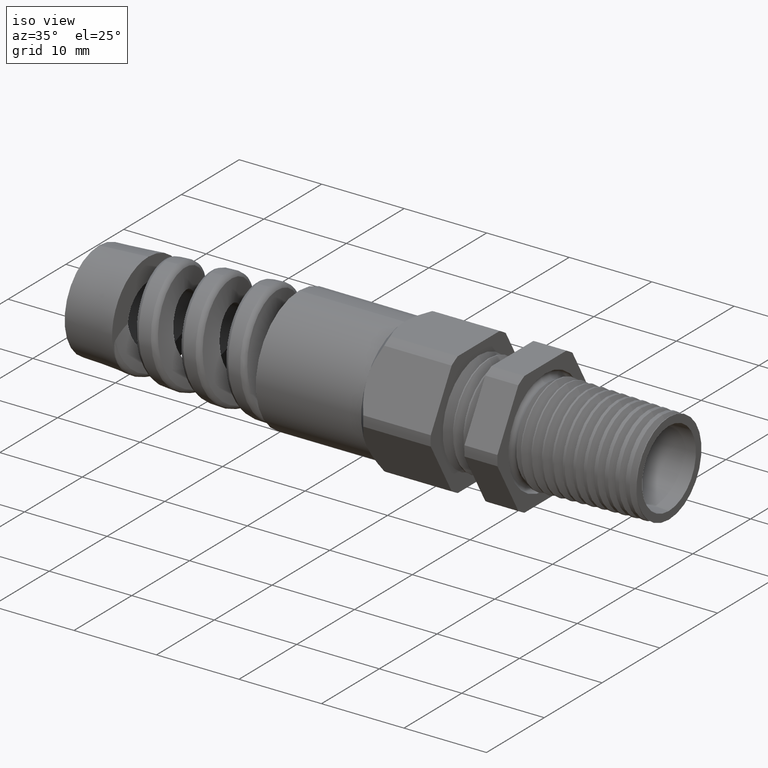
[diagram: clean part render]
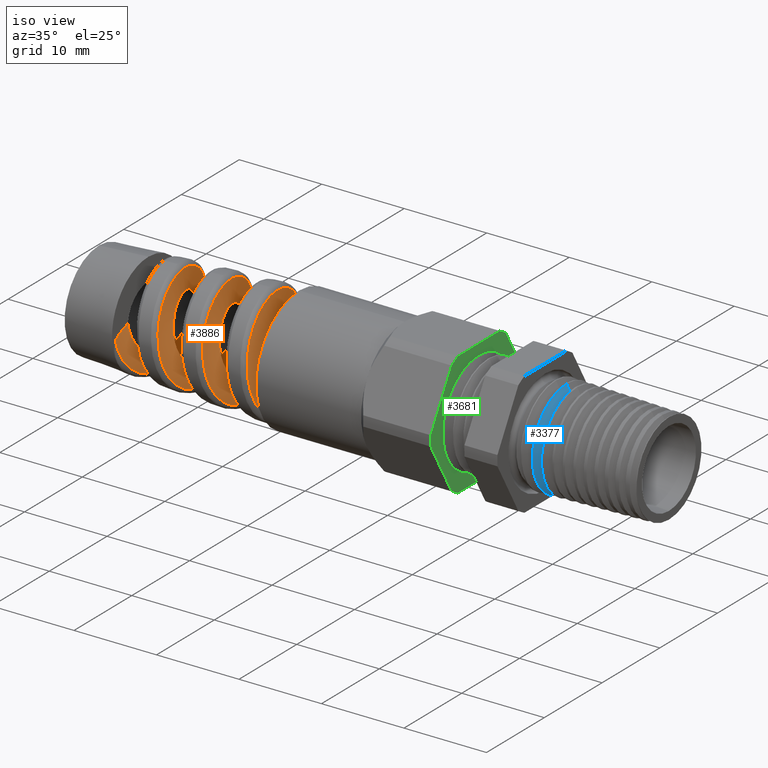
[diagram: same view with three faces highlighted in distinct colors, each labeled with its STEP entity id]
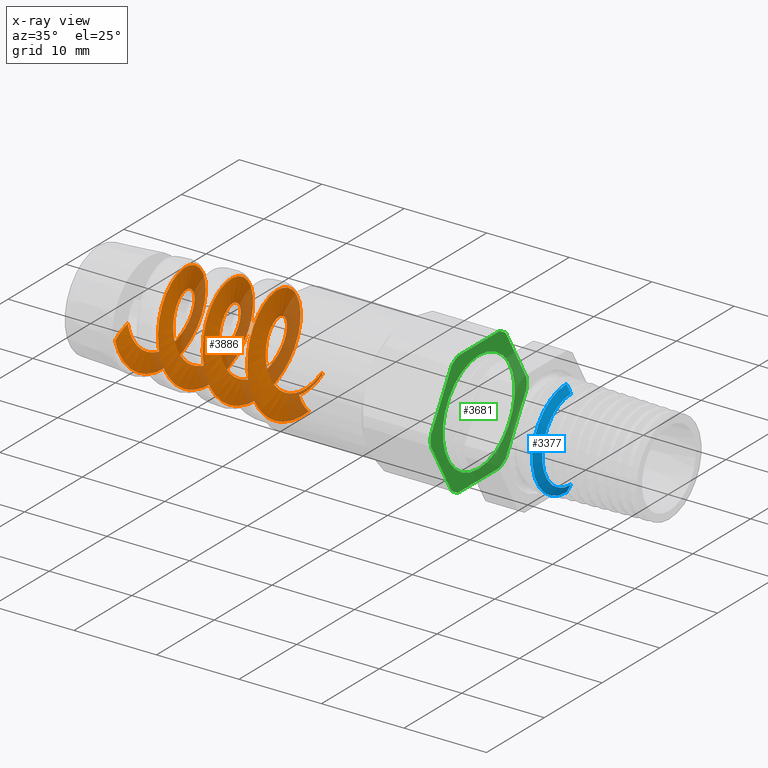
[diagram: x-ray of the same camera — body ghosted, the three highlighted faces saturated]
A machine part, iso view with three faces highlighted in distinct colors.
The next image is the same camera in x-ray (body ghosted, the three faces saturated) — at least one of them is partly hidden behind the body in this view.
Their STEP definitions:

[orange] entity #3886 — the highlighted face is a freeform B-spline surface patch.
#96 = CARTESIAN_POINT ( 'NONE',  ( -1.877112860892198800, 0.3078725685327817200, 0.06067525967530775600 ) ) ;
#97 = CARTESIAN_POINT ( 'NONE',  ( -1.885446194225673700, 0.3131205871481073100, -0.01633085429921052700 ) ) ;
#98 = CARTESIAN_POINT ( 'NONE',  ( -1.902112860892436500, 0.2718241730993913900, -0.1554244242149217800 ) ) ;
#99 = CARTESIAN_POINT ( 'NONE',  ( -1.910446194226206100, 0.2254613135370124600, -0.2169259237356238600 ) ) ;
#100 = CARTESIAN_POINT ( 'NONE',  ( -1.927112860891903900, 0.1034267933918962300, -0.2948339599561291000 ) ) ;
#101 = CARTESIAN_POINT ( 'NONE',  ( -1.935446194225839600, 0.02827496824967258900, -0.3109172776356258200 ) ) ;
#102 = CARTESIAN_POINT ( 'NONE',  ( -1.952112860892270200, -0.1146630422064503200, -0.2899249743931121000 ) ) ;
#103 = CARTESIAN_POINT ( 'NONE',  ( -1.960446194225737400, -0.1818460025782895600, -0.2529453131776389100 ) ) ;
#104 = CARTESIAN_POINT ( 'NONE',  ( -1.977112860892372300, -0.2759202457387066000, -0.1437113989407879900 ) ) ;
#105 = CARTESIAN_POINT ( 'NONE',  ( -1.985446194225756000, -0.3024193444428729400, -0.07192370018606444900 ) ) ;
#106 = CARTESIAN_POINT ( 'NONE',  ( -2.002112860892353700, -0.3019829124201798800, 0.07192370018605497000 ) ) ;
#107 = CARTESIAN_POINT ( 'NONE',  ( -2.010446194225864200, -0.2750565168075926900, 0.1433752949841388400 ) ) ;
#108 = CARTESIAN_POINT ( 'NONE',  ( -2.027112860892246200, -0.1807307316014177300, 0.2515666039524897000 ) ) ;
#109 = CARTESIAN_POINT ( 'NONE',  ( -2.035446194225462200, -0.1137356084785749600, 0.2878537194510642500 ) ) ;
#110 = CARTESIAN_POINT ( 'NONE',  ( -2.052112860892648000, 0.02809286356040927000, 0.3078046552487520000 ) ) ;
#111 = CARTESIAN_POINT ( 'NONE',  ( -2.060446194225536300, 0.1023256030788175900, 0.2913913500071362300 ) ) ;
#112 = CARTESIAN_POINT ( 'NONE',  ( -2.077112860892572900, 0.2223153504371732600, 0.2137598339754739600 ) ) ;
#113 = CARTESIAN_POINT ( 'NONE',  ( -2.085446194225842200, 0.2675690496955958600, 0.1528759389014506500 ) ) ;
#114 = CARTESIAN_POINT ( 'NONE',  ( -2.102112860892268100, 0.3073256274505953800, 0.01592836895792579600 ) ) ;
#115 = CARTESIAN_POINT ( 'NONE',  ( -2.110446194225779100, 0.3016674320699259700, -0.05955431389107197100 ) ) ;
#116 = CARTESIAN_POINT ( 'NONE',  ( -2.127112860892332000, 0.2421613108153938800, -0.1888039512647776100 ) ) ;
#117 = CARTESIAN_POINT ( 'NONE',  ( -2.135446194225519600, 0.1885715750516269700, -0.2420275386418699600 ) ) ;
#149 = CARTESIAN_POINT ( 'NONE',  ( -2.203779527559054600, -0.2277829174569560300, -0.02701814665759899900 ) ) ;
#152 = CARTESIAN_POINT ( 'NONE',  ( -1.710446194225917700, 0.07363756474786233000, -0.3096204728745001700 ) ) ;
#153 = CARTESIAN_POINT ( 'NONE',  ( -1.727112860892191700, -0.07363756474784258200, -0.3091840408516055000 ) ) ;
#154 = CARTESIAN_POINT ( 'NONE',  ( -1.735446194225915400, -0.1467957788194899900, -0.2816211091607233000 ) ) ;
#155 = CARTESIAN_POINT ( 'NONE',  ( -1.752112860892194800, -0.2575775926169353600, -0.1850506387422891400 ) ) ;
#156 = CARTESIAN_POINT ( 'NONE',  ( -1.760446194225692800, -0.2947376424202973200, -0.1164568557998286600 ) ) ;
#157 = CARTESIAN_POINT ( 'NONE',  ( -1.777112860892416700, -0.3151763949340444200, 0.02876445602541934400 ) ) ;
#158 = CARTESIAN_POINT ( 'NONE',  ( -1.785446194225393400, -0.2983759098785797000, 0.1047770324228567800 ) ) ;
#159 = CARTESIAN_POINT ( 'NONE',  ( -1.802112860892716200, -0.2188912235708207200, 0.2276503690167728000 ) ) ;
#160 = CARTESIAN_POINT ( 'NONE',  ( -1.810446194225844100, -0.1565491722323917000, 0.2739956303825092900 ) ) ;
#161 = CARTESIAN_POINT ( 'NONE',  ( -1.827112860892266200, -0.01631272027730937300, 0.3147179110279694200 ) ) ;
#162 = CARTESIAN_POINT ( 'NONE',  ( -1.835446194225549100, 0.06098678470978882000, 0.3089297739638116600 ) ) ;
#163 = CARTESIAN_POINT ( 'NONE',  ( -1.852112860892561000, 0.1933543941680695400, 0.2479997225694611500 ) ) ;
#164 = CARTESIAN_POINT ( 'NONE',  ( -1.860446194225910700, 0.2478659503961175600, 0.1931220179551262600 ) ) ;
#179 = CARTESIAN_POINT ( 'NONE',  ( -2.191562501492804800, -0.1380802437323614400, -0.03507562850228176200 ) ) ;
#180 = CARTESIAN_POINT ( 'NONE',  ( -2.194030115570699400, -0.1402073929731216500, -0.02524847961001126100 ) ) ;
#181 = CARTESIAN_POINT ( 'NONE',  ( -2.198891390103962600, -0.1423502288729346600, -0.005657835872453868600 ) ) ;
#182 = CARTESIAN_POINT ( 'NONE',  ( -2.201313340382343900, -0.1424097170766695500, 0.004214716230947322300 ) ) ;
#183 = CARTESIAN_POINT ( 'NONE',  ( -2.203779527559055000, -0.1414148259496368900, 0.01415448697344930500 ) ) ;
#184 = CARTESIAN_POINT ( 'NONE',  ( -1.468779527559054900, 0.2387781236985069000, -0.2069024219681114000 ) ) ;
#185 = CARTESIAN_POINT ( 'NONE',  ( -1.477129114036432900, 0.1892741821010096900, -0.2636991410921907800 ) ) ;
#186 = CARTESIAN_POINT ( 'NONE',  ( -1.485446194225549700, 0.1191781031206922000, -0.3016215653894396300 ) ) ;
#187 = CARTESIAN_POINT ( 'NONE',  ( -1.502112860892559800, -0.02943604849003148400, -0.3225481346194263900 ) ) ;
#188 = CARTESIAN_POINT ( 'NONE',  ( -1.510446194226031200, -0.1072284617663105500, -0.3053604697503148300 ) ) ;
#189 = CARTESIAN_POINT ( 'NONE',  ( -1.527112860892078300, -0.2329853875969576400, -0.2240226131658758800 ) ) ;
#190 = CARTESIAN_POINT ( 'NONE',  ( -1.535446194225908300, -0.2804222110696656900, -0.1602224055619982900 ) ) ;
#191 = CARTESIAN_POINT ( 'NONE',  ( -1.552112860892201500, -0.3221101946050999300, -0.01669707159802963000 ) ) ;
#192 = CARTESIAN_POINT ( 'NONE',  ( -1.560446194225717300, -0.3161921158573208800, 0.06241925552935800900 ) ) ;
#193 = CARTESIAN_POINT ( 'NONE',  ( -1.577112860892393200, -0.2538381343239009500, 0.1979048370705178100 ) ) ;
#194 = CARTESIAN_POINT ( 'NONE',  ( -1.585446194225535100, -0.1976724608589812100, 0.2537043621501964300 ) ) ;
#195 = CARTESIAN_POINT ( 'NONE',  ( -1.602112860892574300, -0.06210773049348305300, 0.3151349104266461000 ) ) ;
#196 = CARTESIAN_POINT ( 'NONE',  ( -1.610446194225737100, 0.01671520561887105900, 0.3205128707256724200 ) ) ;
#197 = CARTESIAN_POINT ( 'NONE',  ( -1.627112860892372600, 0.1590976575455656500, 0.2782507537861197400 ) ) ;
#198 = CARTESIAN_POINT ( 'NONE',  ( -1.635446194225751900, 0.2220573133310135000, 0.2307963321169323500 ) ) ;
#199 = CARTESIAN_POINT ( 'NONE',  ( -1.652112860892358300, 0.3018185198275184500, 0.1058782227356328300 ) ) ;
#200 = CARTESIAN_POINT ( 'NONE',  ( -1.660446194225443400, 0.3182890173209653200, 0.02894656071401570000 ) ) ;
#201 = CARTESIAN_POINT ( 'NONE',  ( -1.677112860892666000, 0.2968088973623018700, -0.1173842895270100900 ) ) ;
#202 = CARTESIAN_POINT ( 'NONE',  ( -1.685446194225672000, 0.2589563018411505400, -0.1861659097200718800 ) ) ;
#203 = CARTESIAN_POINT ( 'NONE',  ( -1.702112860892438100, 0.1471318827770902700, -0.2824848380909111800 ) ) ;
#219 = CARTESIAN_POINT ( 'NONE',  ( -2.145159393042757000, -3.250717700679643900E-013, -0.1421214357512619900 ) ) ;
#220 = CARTESIAN_POINT ( 'NONE',  ( -2.147601861365689300, -0.009900830810590888900, -0.1421214357512392300 ) ) ;
#221 = CARTESIAN_POINT ( 'NONE',  ( -2.150018120909497300, -0.01969877907673356000, -0.1410971020930565600 ) ) ;
#222 = CARTESIAN_POINT ( 'NONE',  ( -2.154903323822041600, -0.03906330386540427000, -0.1370054466336702900 ) ) ;
#223 = CARTESIAN_POINT ( 'NONE',  ( -2.157374959245164500, -0.04862943942304991100, -0.1339057893275970300 ) ) ;
#224 = CARTESIAN_POINT ( 'NONE',  ( -2.162247766013815700, -0.06664213333864664500, -0.1259142917151223100 ) ) ;
#225 = CARTESIAN_POINT ( 'NONE',  ( -2.164673882110147700, -0.07520578529420050800, -0.1210055114218552600 ) ) ;
#226 = CARTESIAN_POINT ( 'NONE',  ( -2.169604203911526000, -0.09138956567276260200, -0.1092986332134393600 ) ) ;
#227 = CARTESIAN_POINT ( 'NONE',  ( -2.172026864086219300, -0.09873766868825194200, -0.1026959642033962200 ) ) ;
#228 = CARTESIAN_POINT ( 'NONE',  ( -2.176888507261004200, -0.1119646355388851400, -0.08808807337148917600 ) ) ;
#229 = CARTESIAN_POINT ( 'NONE',  ( -2.179355714293586200, -0.1179004093688648400, -0.07997481260833180800 ) ) ;
#230 = CARTESIAN_POINT ( 'NONE',  ( -2.184248576838365700, -0.1278482644510914600, -0.06285935457771962800 ) ) ;
#231 = CARTESIAN_POINT ( 'NONE',  ( -2.186672295474280300, -0.1318858907144919700, -0.05387546059630027300 ) ) ;
#241 = CARTESIAN_POINT ( 'NONE',  ( -1.484637038485884900, -0.006803692892923731600, -0.01923237462847847100 ) ) ;
#242 = CARTESIAN_POINT ( 'NONE',  ( -1.501303705151932000, -0.01443207417156423800, -0.01381112391729970300 ) ) ;
#243 = CARTESIAN_POINT ( 'NONE',  ( -1.509637038485762000, -0.01715218036453363500, -0.009745457315661553200 ) ) ;
#244 = CARTESIAN_POINT ( 'NONE',  ( -1.526303705152055200, -0.01927937087768488000, -0.0009518113078972378700 ) ) ;
#245 = CARTESIAN_POINT ( 'NONE',  ( -1.534637038485571000, -0.01868445744108876800, 0.003736939583521700000 ) ) ;
#246 = CARTESIAN_POINT ( 'NONE',  ( -1.551303705152246900, -0.01466291548095782800, 0.01149229534525897400 ) ) ;
#247 = CARTESIAN_POINT ( 'NONE',  ( -1.559637038485388800, -0.01125991913292661800, 0.01452914330758051600 ) ) ;
#248 = CARTESIAN_POINT ( 'NONE',  ( -1.576303705152428000, -0.003425414548400141600, 0.01762725201010611000 ) ) ;
#249 = CARTESIAN_POINT ( 'NONE',  ( -1.584637038485591000, 0.0009699453283545914000, 0.01768204699836555300 ) ) ;
#250 = CARTESIAN_POINT ( 'NONE',  ( -1.601303705152226300, 0.008620709299660842000, 0.01498072308086553300 ) ) ;
#251 = CARTESIAN_POINT ( 'NONE',  ( -1.609637038485605600, 0.01184582408048378600, 0.01224301869458858200 ) ) ;
#252 = CARTESIAN_POINT ( 'NONE',  ( -1.626303705152212000, 0.01569042470766306200, 0.005453453859153693100 ) ) ;
#253 = CARTESIAN_POINT ( 'NONE',  ( -1.634637038485297100, 0.01629979056163205800, 0.001434237256013096500 ) ) ;
#254 = CARTESIAN_POINT ( 'NONE',  ( -1.651303705152519700, 0.01480347341187953200, -0.005906211487798319700 ) ) ;
#255 = CARTESIAN_POINT ( 'NONE',  ( -1.659637038485525700, 0.01271133192675264100, -0.009197449783060668300 ) ) ;
#256 = CARTESIAN_POINT ( 'NONE',  ( -1.676303705152291800, 0.007009019663753598100, -0.01356104915892289100 ) ) ;
#257 = CARTESIAN_POINT ( 'NONE',  ( -1.684637038485771600, 0.003427729109092368800, -0.01462047287446266800 ) ) ;
#258 = CARTESIAN_POINT ( 'NONE',  ( -1.701303705152045400, -0.003427729109091449000, -0.01418404085164191300 ) ) ;
#259 = CARTESIAN_POINT ( 'NONE',  ( -1.709637038485769300, -0.006672915705391548700, -0.01269732022940215000 ) ) ;
#260 = CARTESIAN_POINT ( 'NONE',  ( -1.726303705152048500, -0.01133262270333000800, -0.008082178804583981700 ) ) ;
#261 = CARTESIAN_POINT ( 'NONE',  ( -1.734637038485546500, -0.01273221846952035100, -0.004978777763073097100 ) ) ;
#262 = CARTESIAN_POINT ( 'NONE',  ( -1.751303705152270400, -0.01318716817507210700, 0.001252132569916833300 ) ) ;
#263 = CARTESIAN_POINT ( 'NONE',  ( -1.759637038485247100, -0.01224781476101970800, 0.004352263542806448500 ) ) ;
#264 = CARTESIAN_POINT ( 'NONE',  ( -1.776303705152569900, -0.008679734317972635800, 0.009097055598036023200 ) ) ;
#265 = CARTESIAN_POINT ( 'NONE',  ( -1.784637038485697800, -0.006072223992333797500, 0.01072559967550542100 ) ) ;
#266 = CARTESIAN_POINT ( 'NONE',  ( -1.801303705152119900, -0.0005674599809090502500, 0.01188708730242308600 ) ) ;
#267 = CARTESIAN_POINT ( 'NONE',  ( -1.809637038485402800, 0.002304468757323216800, 0.01142211555061560000 ) ) ;
#268 = CARTESIAN_POINT ( 'NONE',  ( -1.826303705152414700, 0.006941852449436416100, 0.008824503723483621100 ) ) ;
#269 = CARTESIAN_POINT ( 'NONE',  ( -1.834637038485764400, 0.008690731549907919700, 0.006709476236954130600 ) ) ;
#270 = CARTESIAN_POINT ( 'NONE',  ( -1.851303705152052400, 0.01036491011983199000, 0.001992943722350139400 ) ) ;
#271 = CARTESIAN_POINT ( 'NONE',  ( -1.859637038485527400, 0.01028976342300628000, -0.0005855940013214381200 ) ) ;
#272 = CARTESIAN_POINT ( 'NONE',  ( -1.876303705152290200, 0.008554142391934129900, -0.004947475976379942800 ) ) ;
#273 = CARTESIAN_POINT ( 'NONE',  ( -1.884637038486059800, 0.006908000121139546400, -0.006714434480941700600 ) ) ;
#274 = CARTESIAN_POINT ( 'NONE',  ( -1.901303705151757600, 0.003002024508955549900, -0.008705864840420270500 ) ) ;
#275 = CARTESIAN_POINT ( 'NONE',  ( -1.909637038485693300, 0.0007626447992916610000, -0.008928050877358650900 ) ) ;
#276 = CARTESIAN_POINT ( 'NONE',  ( -1.926303705152123900, -0.003184964174842425900, -0.007919550441626186200 ) ) ;
#277 = CARTESIAN_POINT ( 'NONE',  ( -1.934637038485591100, -0.004877542636247676400, -0.006700343269030822000 ) ) ;
#278 = CARTESIAN_POINT ( 'NONE',  ( -1.951303705152226000, -0.006996456811743522900, -0.003588535821667604500 ) ) ;
#279 = CARTESIAN_POINT ( 'NONE',  ( -1.959637038485609700, -0.007419344442860373000, -0.001713864554373319000 ) ) ;
#280 = CARTESIAN_POINT ( 'NONE',  ( -1.976303705152207400, -0.006982912420191427600, 0.001713864554373093500 ) ) ;
#281 = CARTESIAN_POINT ( 'NONE',  ( -1.984637038485718200, -0.006132727882176294000, 0.003252431863227043700 ) ) ;
#282 = CARTESIAN_POINT ( 'NONE',  ( -2.001303705152099900, -0.003762271657816407900, 0.005321634045687766500 ) ) ;
#283 = CARTESIAN_POINT ( 'NONE',  ( -2.009637038485315900, -0.002257530450207830900, 0.005848295499102942000 ) ) ;
#284 = CARTESIAN_POINT ( 'NONE',  ( -2.026303705152501700, 0.0005805401132877570500, 0.005815428490963013400 ) ) ;
#285 = CARTESIAN_POINT ( 'NONE',  ( -2.034637038485390500, 0.001900834192321931100, 0.005263254893715574000 ) ) ;
#286 = CARTESIAN_POINT ( 'NONE',  ( -2.051303705152426500, 0.003762037024874653700, 0.003548344718491068000 ) ) ;
#287 = CARTESIAN_POINT ( 'NONE',  ( -2.059637038485695900, 0.004299018986259413500, 0.002398990669249196100 ) ) ;
#288 = CARTESIAN_POINT ( 'NONE',  ( -2.076303705152121800, 0.004494803727378816400, 0.0001831086536782358600 ) ) ;
#289 = CARTESIAN_POINT ( 'NONE',  ( -2.084637038485632800, 0.004159773660320750600, -0.0008719979308312859700 ) ) ;
#290 = CARTESIAN_POINT ( 'NONE',  ( -2.101303705152185700, 0.002986091965831221600, -0.002391409553907287800 ) ) ;
#291 = CARTESIAN_POINT ( 'NONE',  ( -2.109637038485373300, 0.002159033341366527400, -0.002852319792054046300 ) ) ;
#293 = B_SPLINE_CURVE_WITH_KNOTS ( 'NONE', 3,
 ( #183, #182, #181, #180, #179, #231, #230, #229, #228, #227, #226, #225, #224, #223, #222, #221, #220, #219 ),
 .UNSPECIFIED., .F., .F.,
 ( 4, 2, 2, 2, 2, 2, 2, 2, 4 ),
 ( 2.318655878900633200E-015, 0.0007729172111650498800, 0.001545834422327781100, 0.002318751633490512200, 0.003091668844653242900, 0.003864586055815973100, 0.004637503266978703300, 0.005410420478141433600, 0.006183337689304165500 ),
 .UNSPECIFIED. ) ;
#315 = FACE_OUTER_BOUND ( 'NONE', #3887, .T. ) ;
#329 = CARTESIAN_POINT ( 'NONE',  ( -2.152112860892590800, 0.05924278885677188700, -0.3006102266390886000 ) ) ;
#330 = CARTESIAN_POINT ( 'NONE',  ( -2.160446194225433400, -0.01594650298015578100, -0.3057283035703586300 ) ) ;
#331 = CARTESIAN_POINT ( 'NONE',  ( -2.177112860892676900, -0.1517511908836698700, -0.2653975924128473800 ) ) ;
#332 = CARTESIAN_POINT ( 'NONE',  ( -2.185446194225847200, -0.2117945341406551300, -0.2201262949566992800 ) ) ;
#333 = CARTESIAN_POINT ( 'NONE',  ( -2.202112860892263300, -0.2878494000843185900, -0.1009753640485537600 ) ) ;
#334 = CARTESIAN_POINT ( 'NONE',  ( -2.210446194225621900, -0.3035455379500239800, -0.02760337578435316500 ) ) ;
#335 = CARTESIAN_POINT ( 'NONE',  ( -2.227112860892488400, -0.2830410514241858400, 0.1119417948849059500 ) ) ;
#336 = CARTESIAN_POINT ( 'NONE',  ( -2.235446194226001500, -0.2469343245134305600, 0.1775260954371022100 ) ) ;
#337 = CARTESIAN_POINT ( 'NONE',  ( -2.252112860892109000, -0.1402909151051786600, 0.2693556533859099400 ) ) ;
#338 = CARTESIAN_POINT ( 'NONE',  ( -2.260446194225505000, -0.07020983562286432800, 0.2952182160112474800 ) ) ;
#339 = CARTESIAN_POINT ( 'NONE',  ( -2.277946194225960200, 0.07723081918515126200, 0.2947599623876277500 ) ) ;
#340 = CARTESIAN_POINT ( 'NONE',  ( -2.287112860892347700, 0.1537799074146917200, 0.2627341645830989500 ) ) ;
#341 = CARTESIAN_POINT ( 'NONE',  ( -2.305446194225762900, 0.2623947001361476800, 0.1534404429677366000 ) ) ;
#342 = CARTESIAN_POINT ( 'NONE',  ( -2.314612860892492700, 0.2937998119260346000, 0.07685376898084146600 ) ) ;
#343 = CARTESIAN_POINT ( 'NONE',  ( -2.332946194225617100, 0.2933197367013548100, -0.07685376898084377000 ) ) ;
#344 = CARTESIAN_POINT ( 'NONE',  ( -2.342112860892423800, 0.2614491564777926000, -0.1530281288214259400 ) ) ;
#345 = CARTESIAN_POINT ( 'NONE',  ( -2.360446194225685800, 0.1526886643745910000, -0.2611096920309634600 ) ) ;
#346 = CARTESIAN_POINT ( 'NONE',  ( -2.369612860892810400, 0.07647671877706857500, -0.2923595862397477300 ) ) ;
#347 = CARTESIAN_POINT ( 'NONE',  ( -2.387946194225299300, -0.07647671877707291900, -0.2918795110150310700 ) ) ;
#348 = CARTESIAN_POINT ( 'NONE',  ( -2.397112860892150400, -0.1522763502281412300, -0.2601641483726373500 ) ) ;
#351 = CARTESIAN_POINT ( 'NONE',  ( -2.415446194225959500, -0.2598246839257985500, -0.1519368857812937200 ) ) ;
#352 = CARTESIAN_POINT ( 'NONE',  ( -2.424612860892358900, -0.2909193605533944000, -0.07609966857321848200 ) ) ;
#353 = CARTESIAN_POINT ( 'NONE',  ( -2.442946194225751100, -0.2904392853287737800, 0.07609966857322557300 ) ) ;
#354 = CARTESIAN_POINT ( 'NONE',  ( -2.452112860892601300, -0.2588791402671282200, 0.1515245716352003900 ) ) ;
#355 = CARTESIAN_POINT ( 'NONE',  ( -2.470446194225509400, -0.1511851071883504000, 0.2585396758202897500 ) ) ;
#356 = CARTESIAN_POINT ( 'NONE',  ( -2.479588047183890700, -0.07592759638444826500, 0.2894797846432755600 ) ) ;
#357 = CARTESIAN_POINT ( 'NONE',  ( -2.488779527559054700, 4.810179415061299700E-015, 0.2892390972547788100 ) ) ;
#358 = CARTESIAN_POINT ( 'NONE',  ( -1.442970371818908600, 0.01583199926398995800, -0.01371850545426394800 ) ) ;
#359 = CARTESIAN_POINT ( 'NONE',  ( -1.451309438653319800, 0.01239972607401174100, -0.01734610553144407000 ) ) ;
#360 = CARTESIAN_POINT ( 'NONE',  ( -1.459637038485403400, 0.007700025076291124600, -0.01961614143984673200 ) ) ;
#361 = CARTESIAN_POINT ( 'NONE',  ( -1.476303705152413500, -0.001923725026897830600, -0.02055890785927210600 ) ) ;
#368 = CARTESIAN_POINT ( 'NONE',  ( -2.126303705152444500, 0.0005604728959156204600, -0.003102568229739103600 ) ) ;
#369 = CARTESIAN_POINT ( 'NONE',  ( -2.134637038485287100, -0.0002012426739274018900, -0.002897479847716239800 ) ) ;
#370 = CARTESIAN_POINT ( 'NONE',  ( -2.151303705152530600, -0.001274242653459475200, -0.002127561702933739900 ) ) ;
#371 = CARTESIAN_POINT ( 'NONE',  ( -2.159637038485700900, -0.001583044881282623100, -0.001572981548056362000 ) ) ;
#372 = CARTESIAN_POINT ( 'NONE',  ( -2.176303705152117000, -0.001721304973294271500, -0.0005505951583920715600 ) ) ;
#373 = CARTESIAN_POINT ( 'NONE',  ( -2.184637038485475600, -0.001556311193066839300, -9.105234294697234300E-005 ) ) ;
#374 = CARTESIAN_POINT ( 'NONE',  ( -2.201303705152342100, -0.001035627471391486900, 0.0004637168622623952500 ) ) ;
#375 = CARTESIAN_POINT ( 'NONE',  ( -2.209637038485855200, -0.0006893546115892620800, 0.0005576354891925718800 ) ) ;
#376 = CARTESIAN_POINT ( 'NONE',  ( -2.226303705151962700, -0.0001680519793015710200, 0.0004318644648059295400 ) ) ;
#377 = CARTESIAN_POINT ( 'NONE',  ( -2.234637038485359100, 1.334163768545290300E-016, 0.0002182160112491316700 ) ) ;
#378 = CARTESIAN_POINT ( 'NONE',  ( -2.252137038485813900, -1.467580145399828900E-016, -0.0002400376123751921300 ) ) ;
#379 = CARTESIAN_POINT ( 'NONE',  ( -2.261303705152201400, -0.0002061570738461238800, -0.0004727718284636083500 ) ) ;
#380 = CARTESIAN_POINT ( 'NONE',  ( -2.279637038485616600, -0.0008122362753802200700, -0.0005456215207627261700 ) ) ;
#381 = CARTESIAN_POINT ( 'NONE',  ( -2.288803705152346400, -0.001200188073946070900, -0.0003770502019031567100 ) ) ;
#382 = CARTESIAN_POINT ( 'NONE',  ( -2.307137038485470800, -0.001680263298665622400, 0.0003770502019031681000 ) ) ;
#383 = CARTESIAN_POINT ( 'NONE',  ( -2.316303705152277500, -0.001757779932341547000, 0.0009579356685104085300 ) ) ;
#384 = CARTESIAN_POINT ( 'NONE',  ( -2.334637038485539500, -0.001297400115335747000, 0.002097244379166927700 ) ) ;
#385 = CARTESIAN_POINT ( 'NONE',  ( -2.343803705152664600, -0.0007541004037877321500, 0.002640413760248521100 ) ) ;
#386 = CARTESIAN_POINT ( 'NONE',  ( -2.362137038485153000, 0.0007541004037877747600, 0.003120488984973718300 ) ) ;
#387 = CARTESIAN_POINT ( 'NONE',  ( -2.371303705152004100, 0.001709714263159855000, 0.003042788036178665400 ) ) ;
#388 = CARTESIAN_POINT ( 'NONE',  ( -2.389637038485813200, 0.003382252482968568000, 0.002049178709949650300 ) ) ;
#389 = CARTESIAN_POINT ( 'NONE',  ( -2.398803705152213100, 0.004080639446609309100, 0.001131150605652440800 ) ) ;
#390 = CARTESIAN_POINT ( 'NONE',  ( -2.417137038485604800, 0.004560714671223530300, -0.001131150605652546400 ) ) ;
#391 = CARTESIAN_POINT ( 'NONE',  ( -2.426303705152455000, 0.004327796139939168000, -0.002461492857770566800 ) ) ;
#392 = CARTESIAN_POINT ( 'NONE',  ( -2.444637038485363100, 0.002800957304640154900, -0.004667260586808956800 ) ) ;
#393 = CARTESIAN_POINT ( 'NONE',  ( -2.453802188014428500, 0.001508450437043190000, -0.005520825398922370000 ) ) ;
#394 = CARTESIAN_POINT ( 'NONE',  ( -2.462970371818908400, -9.580646620821823400E-017, -0.005760902745221693400 ) ) ;
#395 = B_SPLINE_SURFACE_WITH_KNOTS ( 'NONE', 1, 3, ( 
 ( #394, #393, #392, #391, #390, #389, #388, #387, #386, #385, #384, #383, #382, #381, #380, #379, #378, #377, #376, #375, #374, #373, #372, #371, #370, #369, #368, #291, #290, #289, #288, #287, #286, #285, #284, #283, #282, #281, #280, #279, #278, #277, #276, #275, #274, #273, #272, #271, #270, #269, #268, #267, #266, #265, #264, #263, #262, #261, #260, #259, #258, #257, #256, #255, #254, #253, #252, #251, #250, #249, #248, #247, #246, #245, #244, #243, #242, #241, #361, #360, #359, #358 ),
 ( #357, #356, #355, #354, #353, #352, #351, #348, #347, #346, #345, #344, #343, #342, #341, #340, #339, #338, #337, #336, #335, #334, #333, #332, #331, #330, #329, #117, #116, #115, #114, #113, #112, #111, #110, #109, #108, #107, #106, #105, #104, #103, #102, #101, #100, #99, #98, #97, #96, #164, #163, #162, #161, #160, #159, #158, #157, #156, #155, #154, #153, #152, #203, #202, #201, #200, #199, #198, #197, #196, #195, #194, #193, #192, #191, #190, #189, #188, #187, #186, #185, #184 ) ),
 .UNSPECIFIED., .F., .F., .F.,
 ( 2, 2 ),
 ( 4, 2, 2, 2, 2, 2, 2, 2, 2, 2, 2, 2, 2, 2, 2, 2, 2, 2, 2, 2, 2, 2, 2, 2, 2, 2, 2, 2, 2, 2, 2, 2, 2, 2, 2, 2, 2, 2, 2, 2, 4 ),
 ( 0.0000000000000000000, 1.000000000000000000 ),
 ( 0.0000000000000000000, 0.02696078431372549500, 0.05392156862745099000, 0.08088235294117648900, 0.1078431372549019800, 0.1348039215686274700, 0.1617647058823529800, 0.1887254901960784800, 0.2156862745098039600, 0.2401960784313725800, 0.2647058823529412400, 0.2892156862745098900, 0.3137254901960784800, 0.3382352941176470800, 0.3627450980392157300, 0.3872549019607843800, 0.4117647058823529800, 0.4362745098039215700, 0.4607843137254902200, 0.4852941176470588800, 0.5098039215686275300, 0.5343137254901961800, 0.5588235294117647200, 0.5833333333333333700, 0.6078431372549020200, 0.6323529411764706700, 0.6568627450980393200, 0.6813725490196078600, 0.7058823529411765200, 0.7303921568627451700, 0.7549019607843137100, 0.7794117647058823600, 0.8039215686274510100, 0.8284313725490196600, 0.8529411764705883100, 0.8774509803921568500, 0.9019607843137255100, 0.9264705882352941600, 0.9509803921568627000, 0.9754901960784313500, 1.000000000000000000 ),
 .UNSPECIFIED. ) ;
#413 = CARTESIAN_POINT ( 'NONE',  ( -2.203779527559054600, -0.2277829174569560300, -0.02701814665759899900 ) ) ;
#414 = CARTESIAN_POINT ( 'NONE',  ( -2.203779527559056400, -0.2213313231056822900, -0.02223093435764156300 ) ) ;
#415 = CARTESIAN_POINT ( 'NONE',  ( -2.203779527559055900, -0.2146099939531513100, -0.01770680443702552600 ) ) ;
#416 = CARTESIAN_POINT ( 'NONE',  ( -2.203779527559056400, -0.2008901699599269800, -0.009395663320605424400 ) ) ;
#417 = CARTESIAN_POINT ( 'NONE',  ( -2.203779527559055500, -0.1938619823692906700, -0.005584493175653644700 ) ) ;
#418 = CARTESIAN_POINT ( 'NONE',  ( -2.203779527559055500, -0.1794592087401402400, 0.001328892442043446700 ) ) ;
#419 = CARTESIAN_POINT ( 'NONE',  ( -2.203779527559055500, -0.1720847008063271800, 0.004431267767390142800 ) ) ;
#420 = CARTESIAN_POINT ( 'NONE',  ( -2.203779527559056400, -0.1569695958718345700, 0.009886764037793817700 ) ) ;
#421 = CARTESIAN_POINT ( 'NONE',  ( -2.203779527559055000, -0.1492030511915911400, 0.01224181001414258700 ) ) ;
#422 = CARTESIAN_POINT ( 'NONE',  ( -2.203779527559055000, -0.1414148259496368900, 0.01415448697344930500 ) ) ;
#424 = B_SPLINE_CURVE_WITH_KNOTS ( 'NONE', 3,
 ( #422, #421, #420, #419, #418, #417, #416, #415, #414, #413 ),
 .UNSPECIFIED., .F., .F.,
 ( 4, 2, 2, 2, 4 ),
 ( 0.003659349462376213800, 0.004272105177380052500, 0.004884860892383892000, 0.005497616607387730700, 0.006110372322391569400 ),
 .UNSPECIFIED. ) ;
#3752 = EDGE_CURVE ( 'NONE', #3825, #3753, #7959, .T. ) ;
#3753 = VERTEX_POINT ( 'NONE', #7958 ) ;
#3793 = EDGE_CURVE ( 'NONE', #4291, #3825, #7796, .T. ) ;
#3825 = VERTEX_POINT ( 'NONE', #7661 ) ;
#3842 = EDGE_CURVE ( 'NONE', #4340, #4290, #7928, .T. ) ;
#3856 = EDGE_CURVE ( 'NONE', #3916, #3753, #7881, .T. ) ;
#3886 = ADVANCED_FACE ( 'NONE', ( #315 ), #395, .T. ) ;
#3887 = EDGE_LOOP ( 'NONE', ( #3896, #3897, #3898, #3899, #3900, #3901, #3964, #3965, #3966, #3967, #3968, #3969, #3970, #3971 ) ) ;
#3891 = EDGE_CURVE ( 'NONE', #4261, #4142, #293, .T. ) ;
#3896 = ORIENTED_EDGE ( 'NONE', *, *, #3752, .F. ) ;
#3897 = ORIENTED_EDGE ( 'NONE', *, *, #3793, .F. ) ;
#3898 = ORIENTED_EDGE ( 'NONE', *, *, #4289, .F. ) ;
#3899 = ORIENTED_EDGE ( 'NONE', *, *, #3842, .F. ) ;
#3900 = ORIENTED_EDGE ( 'NONE', *, *, #4339, .F. ) ;
#3901 = ORIENTED_EDGE ( 'NONE', *, *, #4173, .F. ) ;
#3916 = VERTEX_POINT ( 'NONE', #149 ) ;
#3918 = EDGE_CURVE ( 'NONE', #4261, #3916, #424, .T. ) ;
#3964 = ORIENTED_EDGE ( 'NONE', *, *, #4134, .F. ) ;
#3965 = ORIENTED_EDGE ( 'NONE', *, *, #4360, .F. ) ;
#3966 = ORIENTED_EDGE ( 'NONE', *, *, #4155, .F. ) ;
#3967 = ORIENTED_EDGE ( 'NONE', *, *, #4393, .F. ) ;
#3968 = ORIENTED_EDGE ( 'NONE', *, *, #4144, .F. ) ;
#3969 = ORIENTED_EDGE ( 'NONE', *, *, #3891, .F. ) ;
#3970 = ORIENTED_EDGE ( 'NONE', *, *, #3918, .T. ) ;
#3971 = ORIENTED_EDGE ( 'NONE', *, *, #3856, .T. ) ;
#4134 = EDGE_CURVE ( 'NONE', #4342, #4171, #7199, .T. ) ;
#4142 = VERTEX_POINT ( 'NONE', #6998 ) ;
#4144 = EDGE_CURVE ( 'NONE', #4142, #4147, #6995, .T. ) ;
#4147 = VERTEX_POINT ( 'NONE', #7042 ) ;
#4155 = EDGE_CURVE ( 'NONE', #4394, #4351, #5277, .T. ) ;
#4171 = VERTEX_POINT ( 'NONE', #5628 ) ;
#4173 = EDGE_CURVE ( 'NONE', #4171, #4174, #5626, .T. ) ;
#4174 = VERTEX_POINT ( 'NONE', #5627 ) ;
#4261 = VERTEX_POINT ( 'NONE', #5837 ) ;
#4289 = EDGE_CURVE ( 'NONE', #4290, #4291, #5791, .T. ) ;
#4290 = VERTEX_POINT ( 'NONE', #5790 ) ;
#4291 = VERTEX_POINT ( 'NONE', #5774 ) ;
#4339 = EDGE_CURVE ( 'NONE', #4174, #4340, #6172, .T. ) ;
#4340 = VERTEX_POINT ( 'NONE', #6171 ) ;
#4342 = VERTEX_POINT ( 'NONE', #6173 ) ;
#4351 = VERTEX_POINT ( 'NONE', #6008 ) ;
#4360 = EDGE_CURVE ( 'NONE', #4351, #4342, #6071, .T. ) ;
#4393 = EDGE_CURVE ( 'NONE', #4147, #4394, #6349, .T. ) ;
#4394 = VERTEX_POINT ( 'NONE', #6348 ) ;
#5271 = CARTESIAN_POINT ( 'NONE',  ( -1.894770736694140900, 0.1071392213344493900, -0.09384372556748345200 ) ) ;
#5272 = CARTESIAN_POINT ( 'NONE',  ( -1.899371122199731800, 0.09395880938487954900, -0.1070383095695795500 ) ) ;
#5273 = CARTESIAN_POINT ( 'NONE',  ( -1.901685409328915100, 0.08667177069002321400, -0.1130144708253614900 ) ) ;
#5274 = CARTESIAN_POINT ( 'NONE',  ( -1.906258674631588800, 0.07127268632350071400, -0.1233064095443230800 ) ) ;
#5275 = CARTESIAN_POINT ( 'NONE',  ( -1.908543414897254000, 0.06309478655285592800, -0.1276933175141203900 ) ) ;
#5276 = CARTESIAN_POINT ( 'NONE',  ( -1.913182607445751900, 0.04576021504554330500, -0.1348797173295453200 ) ) ;
#5277 = B_SPLINE_CURVE_WITH_KNOTS ( 'NONE', 3,
 ( #5285, #5284, #5283, #5282, #5276, #5275, #5274, #5273, #5272, #5271, #5324, #5323, #5322, #5321, #5320, #5319, #5318, #5317, #5316, #5315, #5314, #5313, #5312, #5311, #5310, #5309, #5308, #5307, #5306, #5305, #5304, #5303, #5302, #5301 ),
 .UNSPECIFIED., .F., .F.,
 ( 4, 2, 2, 2, 2, 2, 2, 2, 2, 2, 2, 2, 2, 2, 2, 2, 4 ),
 ( 0.02943526200196574700, 0.03016187331152218900, 0.03088848462107863400, 0.03161509593063507900, 0.03234170724019151700, 0.03306831854974796200, 0.03379492985930440700, 0.03452154116886084500, 0.03524815247841729000, 0.03597476378797373500, 0.03670137509753018000, 0.03742798640708662500, 0.03815459771664306300, 0.03888120902619950800, 0.03960782033575595300, 0.04033443164531239100, 0.04106104295486883600 ),
 .UNSPECIFIED. ) ;
#5282 = CARTESIAN_POINT ( 'NONE',  ( -1.915469056811975900, 0.03685592835270860200, -0.1375713510388848800 ) ) ;
#5283 = CARTESIAN_POINT ( 'NONE',  ( -1.920038815949052900, 0.01869453356687430400, -0.1411904759398490700 ) ) ;
#5284 = CARTESIAN_POINT ( 'NONE',  ( -1.922346869646974100, 0.009336098184657965300, -0.1421214357512301800 ) ) ;
#5285 = CARTESIAN_POINT ( 'NONE',  ( -1.924650350914998600, 4.849328984628374000E-013, -0.1421214357512619900 ) ) ;
#5301 = CARTESIAN_POINT ( 'NONE',  ( -1.814405821915975800, 1.552287252149915100E-013, 0.1421214357512619000 ) ) ;
#5302 = CARTESIAN_POINT ( 'NONE',  ( -1.816715538373187900, 0.009352234770640266100, 0.1421214357512517500 ) ) ;
#5303 = CARTESIAN_POINT ( 'NONE',  ( -1.818991428487552400, 0.01857766877652374700, 0.1412065173880522100 ) ) ;
#5304 = CARTESIAN_POINT ( 'NONE',  ( -1.823563984401837200, 0.03676026670561510800, 0.1375975767292598700 ) ) ;
#5305 = CARTESIAN_POINT ( 'NONE',  ( -1.825885526175912800, 0.04580952568761238700, 0.1348574529027163300 ) ) ;
#5306 = CARTESIAN_POINT ( 'NONE',  ( -1.830479083500306900, 0.06299804204659072100, 0.1277352415953731400 ) ) ;
#5307 = CARTESIAN_POINT ( 'NONE',  ( -1.832757887812644500, 0.07116468233427131200, 0.1233713921398198500 ) ) ;
#5308 = CARTESIAN_POINT ( 'NONE',  ( -1.837354628631717100, 0.08662826801109334300, 0.1130506770950671200 ) ) ;
#5309 = CARTESIAN_POINT ( 'NONE',  ( -1.839680846414181600, 0.09394137459694779100, 0.1070489903382931500 ) ) ;
#5310 = CARTESIAN_POINT ( 'NONE',  ( -1.844257405088496600, 0.1070533324980130900, 0.09393642634613003100 ) ) ;
#5311 = CARTESIAN_POINT ( 'NONE',  ( -1.846531842867937100, 0.1129398620580163400, 0.08677781343172633100 ) ) ;
#5312 = CARTESIAN_POINT ( 'NONE',  ( -1.851142002555087500, 0.1233286389200638100, 0.07124498696610018200 ) ) ;
#5313 = CARTESIAN_POINT ( 'NONE',  ( -1.853448036482324000, 0.1277503596998594000, 0.06296073498879248300 ) ) ;
#5314 = CARTESIAN_POINT ( 'NONE',  ( -1.858023649839365600, 0.1348386395812343500, 0.04585575023543284800 ) ) ;
#5315 = CARTESIAN_POINT ( 'NONE',  ( -1.860319149407901200, 0.1375568640057379400, 0.03693889014271622300 ) ) ;
#5316 = CARTESIAN_POINT ( 'NONE',  ( -1.864951875185618400, 0.1412168624368180200, 0.01855182480430291400 ) ) ;
#5317 = CARTESIAN_POINT ( 'NONE',  ( -1.867230769640587900, 0.1421178566537856500, 0.009317654957614076400 ) ) ;
#5318 = CARTESIAN_POINT ( 'NONE',  ( -1.871800968049276400, 0.1421249937552159500, -0.009208149860582971700 ) ) ;
#5319 = CARTESIAN_POINT ( 'NONE',  ( -1.874116698281962800, 0.1412071008801324400, -0.01859806936551275000 ) ) ;
#5320 = CARTESIAN_POINT ( 'NONE',  ( -1.878716353809277300, 0.1375698735048926600, -0.03687632610421164000 ) ) ;
#5321 = CARTESIAN_POINT ( 'NONE',  ( -1.880992998948715700, 0.1348801476967621800, -0.04573876101700686400 ) ) ;
#5322 = CARTESIAN_POINT ( 'NONE',  ( -1.885584275755201000, 0.1277838881889615000, -0.06289647383901764100 ) ) ;
#5323 = CARTESIAN_POINT ( 'NONE',  ( -1.887913766845320500, 0.1233231263988162500, -0.07124630063190848200 ) ) ;
#5324 = CARTESIAN_POINT ( 'NONE',  ( -1.892496883267097600, 0.1130107338422837900, -0.08667873381019809700 ) ) ;
#5592 = CARTESIAN_POINT ( 'NONE',  ( -1.483645574489651300, 9.059917760238123100E-016, -0.1421214357512619900 ) ) ;
#5593 = CARTESIAN_POINT ( 'NONE',  ( -1.485962491043018700, -0.009369994496339512400, -0.1421214357512620200 ) ) ;
#5594 = CARTESIAN_POINT ( 'NONE',  ( -1.488257053943104400, -0.01865428443896783100, -0.1411957187521978900 ) ) ;
#5595 = CARTESIAN_POINT ( 'NONE',  ( -1.492827524170099500, -0.03681433008816804900, -0.1375824059320053000 ) ) ;
#5596 = CARTESIAN_POINT ( 'NONE',  ( -1.495130815305968600, -0.04579691820828432600, -0.1348647406540288400 ) ) ;
#5597 = CARTESIAN_POINT ( 'NONE',  ( -1.499742114184299300, -0.06306429656288110900, -0.1277057183061265100 ) ) ;
#5598 = CARTESIAN_POINT ( 'NONE',  ( -1.502018051649758800, -0.07123444058383945900, -0.1233291943049530000 ) ) ;
#5599 = CARTESIAN_POINT ( 'NONE',  ( -1.506598150244911900, -0.08665127160429560200, -0.1130309374576713300 ) ) ;
#5600 = CARTESIAN_POINT ( 'NONE',  ( -1.508927527004159300, -0.09396311139924237700, -0.1070321678396926500 ) ) ;
#5601 = CARTESIAN_POINT ( 'NONE',  ( -1.513523406344651900, -0.1071069270178289400, -0.09387788579366310200 ) ) ;
#5602 = CARTESIAN_POINT ( 'NONE',  ( -1.515798476763987400, -0.1129811973537975500, -0.08671943031920026400 ) ) ;
#5603 = CARTESIAN_POINT ( 'NONE',  ( -1.520387816956302500, -0.1233196482992446300, -0.07125499907890658900 ) ) ;
#5604 = CARTESIAN_POINT ( 'NONE',  ( -1.522709019717200600, -0.1277748560300504500, -0.06291271574344166300 ) ) ;
#5605 = CARTESIAN_POINT ( 'NONE',  ( -1.527283998610630100, -0.1348641490258142300, -0.04578302025050552700 ) ) ;
#5606 = CARTESIAN_POINT ( 'NONE',  ( -1.529561647863746200, -0.1375615291904522500, -0.03691504018577287200 ) ) ;
#5607 = CARTESIAN_POINT ( 'NONE',  ( -1.534184665776480400, -0.1412117186276462300, -0.01857807921609029200 ) ) ;
#5608 = CARTESIAN_POINT ( 'NONE',  ( -1.536492351841194800, -0.1421221951374360700, -0.009245899659210622000 ) ) ;
#5609 = CARTESIAN_POINT ( 'NONE',  ( -1.541065019772847900, -0.1421206754075877200, 0.009269230436381576500 ) ) ;
#5610 = CARTESIAN_POINT ( 'NONE',  ( -1.543357897832464700, -0.1412147419439805400, 0.01856478068542673600 ) ) ;
#5611 = CARTESIAN_POINT ( 'NONE',  ( -1.547979270177318700, -0.1375563199633277300, 0.03693931865031615400 ) ) ;
#5612 = CARTESIAN_POINT ( 'NONE',  ( -1.550256517239904800, -0.1348537931434523600, 0.04581241572939243800 ) ) ;
#5613 = CARTESIAN_POINT ( 'NONE',  ( -1.554830859106573100, -0.1277655603583445200, 0.06293079171961804600 ) ) ;
#5614 = CARTESIAN_POINT ( 'NONE',  ( -1.557154391056480700, -0.1233185671022162800, 0.07125833455386494700 ) ) ;
#5615 = CARTESIAN_POINT ( 'NONE',  ( -1.561759264286566300, -0.1129660649174355100, 0.08674034478029304900 ) ) ;
#5616 = CARTESIAN_POINT ( 'NONE',  ( -1.564036123848121300, -0.1070891035689916500, 0.09389725615739319400 ) ) ;
#5617 = CARTESIAN_POINT ( 'NONE',  ( -1.568620742262700500, -0.09395747825386528700, 0.1070362700082161800 ) ) ;
#5618 = CARTESIAN_POINT ( 'NONE',  ( -1.570944244313177400, -0.08663870430351722200, 0.1130412049938930700 ) ) ;
#5619 = CARTESIAN_POINT ( 'NONE',  ( -1.575522032534670200, -0.07120728182355039200, 0.1233454584699620300 ) ) ;
#5620 = CARTESIAN_POINT ( 'NONE',  ( -1.577796956103439700, -0.06303914785837926000, 0.1277168992663478300 ) ) ;
#5621 = CARTESIAN_POINT ( 'NONE',  ( -1.582407979985797700, -0.04580244336960277000, 0.1348616947183127200 ) ) ;
#5622 = CARTESIAN_POINT ( 'NONE',  ( -1.584726016446366300, -0.03679296017460379600, 0.1375882077328392800 ) ) ;
#5623 = CARTESIAN_POINT ( 'NONE',  ( -1.589302087284166800, -0.01862983101348541000, 0.1411990305276699900 ) ) ;
#5624 = CARTESIAN_POINT ( 'NONE',  ( -1.591582611885163900, -0.009391204542402473800, 0.1421214357512628800 ) ) ;
#5625 = CARTESIAN_POINT ( 'NONE',  ( -1.593899358838178500, 1.408822547357640700E-014, 0.1421214357512619600 ) ) ;
#5626 = B_SPLINE_CURVE_WITH_KNOTS ( 'NONE', 3,
 ( #5625, #5624, #5623, #5622, #5621, #5620, #5619, #5618, #5617, #5616, #5615, #5614, #5613, #5612, #5611, #5610, #5609, #5608, #5607, #5606, #5605, #5604, #5603, #5602, #5601, #5600, #5599, #5598, #5597, #5596, #5595, #5594, #5593, #5592 ),
 .UNSPECIFIED., .F., .F.,
 ( 4, 2, 2, 2, 2, 2, 2, 2, 2, 2, 2, 2, 2, 2, 2, 2, 4 ),
 ( 0.06431241049496785900, 0.06503901318146564100, 0.06576561586796342300, 0.06649221855446121900, 0.06721882124095900100, 0.06794542392745678300, 0.06867202661395456500, 0.06939862930045236100, 0.07012523198695014300, 0.07085183467344792500, 0.07157843735994570700, 0.07230504004644348900, 0.07303164273294128500, 0.07375824541943906700, 0.07448484810593684900, 0.07521145079243464500, 0.07593805347893242700 ),
 .UNSPECIFIED. ) ;
#5627 = CARTESIAN_POINT ( 'NONE',  ( -1.483645574489651300, 9.059917760238123100E-016, -0.1421214357512619900 ) ) ;
#5628 = CARTESIAN_POINT ( 'NONE',  ( -1.593899358838178500, 1.408822547357640700E-014, 0.1421214357512619600 ) ) ;
#5774 = CARTESIAN_POINT ( 'NONE',  ( -1.484909918755756800, -6.719705787540572700E-015, -0.1565692987783991500 ) ) ;
#5775 = CARTESIAN_POINT ( 'NONE',  ( -1.484909918755756800, -6.719705787540572700E-015, -0.1565692987783991500 ) ) ;
#5776 = CARTESIAN_POINT ( 'NONE',  ( -1.482378002824977100, 0.01127932595020853800, -0.1565692987783996200 ) ) ;
#5777 = CARTESIAN_POINT ( 'NONE',  ( -1.479844028901453200, 0.02257172622869233600, -0.1553354686855281400 ) ) ;
#5778 = CARTESIAN_POINT ( 'NONE',  ( -1.474840858710530600, 0.04438425119546445700, -0.1505610470955672200 ) ) ;
#5779 = CARTESIAN_POINT ( 'NONE',  ( -1.472363843160469300, 0.05494001307855866900, -0.1470410966930784400 ) ) ;
#5780 = CARTESIAN_POINT ( 'NONE',  ( -1.468599549102234600, 0.07022383697180424600, -0.1400497911436179900 ) ) ;
#5781 = CARTESIAN_POINT ( 'NONE',  ( -1.467331894875285600, 0.07524236882830942500, -0.1374182717821080300 ) ) ;
#5782 = CARTESIAN_POINT ( 'NONE',  ( -1.464825974826919200, 0.08485110771860277000, -0.1317022589229309100 ) ) ;
#5783 = CARTESIAN_POINT ( 'NONE',  ( -1.463580748501794200, 0.08947064410506516700, -0.1286067997499826000 ) ) ;
#5784 = CARTESIAN_POINT ( 'NONE',  ( -1.459847989804911000, 0.1027840440319059800, -0.1186272511971757900 ) ) ;
#5785 = CARTESIAN_POINT ( 'NONE',  ( -1.457363052063965100, 0.1109387491886923400, -0.1110577906564913400 ) ) ;
#5786 = CARTESIAN_POINT ( 'NONE',  ( -1.454835633493194900, 0.1183271809087253600, -0.1025310859113147400 ) ) ;
#5790 = CARTESIAN_POINT ( 'NONE',  ( -1.454835633493194900, 0.1183271809087253600, -0.1025310859113147400 ) ) ;
#5791 = B_SPLINE_CURVE_WITH_KNOTS ( 'NONE', 3,
 ( #5786, #5785, #5784, #5783, #5782, #5781, #5780, #5779, #5778, #5777, #5776, #5775 ),
 .UNSPECIFIED., .F., .F.,
 ( 4, 2, 2, 2, 2, 4 ),
 ( 0.0000000000000000000, 0.0008660048510200846700, 0.001299007276530128900, 0.001732009702040173200, 0.002598014553060266500, 0.003464019404080360400 ),
 .UNSPECIFIED. ) ;
#5837 = CARTESIAN_POINT ( 'NONE',  ( -2.203779527559055000, -0.1414148259496368900, 0.01415448697344930500 ) ) ;
#6008 = CARTESIAN_POINT ( 'NONE',  ( -1.814405821915975800, 1.552287252149915100E-013, 0.1421214357512619000 ) ) ;
#6038 = CARTESIAN_POINT ( 'NONE',  ( -1.704144352086476300, -3.507169795103710700E-014, -0.1421214357512619600 ) ) ;
#6039 = CARTESIAN_POINT ( 'NONE',  ( -1.706458292470637300, -0.009370766582583501400, -0.1421214357512596800 ) ) ;
#6040 = CARTESIAN_POINT ( 'NONE',  ( -1.708742725826252200, -0.01860049682026585300, -0.1412031171019680900 ) ) ;
#6041 = CARTESIAN_POINT ( 'NONE',  ( -1.713321978129004300, -0.03677085165141575500, -0.1375943430163552000 ) ) ;
#6042 = CARTESIAN_POINT ( 'NONE',  ( -1.715641434999826800, -0.04580397367718130200, -0.1348602414505664600 ) ) ;
#6043 = CARTESIAN_POINT ( 'NONE',  ( -1.720238596255273300, -0.06301630704229870000, -0.1277271849508777900 ) ) ;
#6044 = CARTESIAN_POINT ( 'NONE',  ( -1.722511552808674700, -0.07118392720215999100, -0.1233595930359289700 ) ) ;
#6045 = CARTESIAN_POINT ( 'NONE',  ( -1.727094452579698100, -0.08663117358582153600, -0.1130476910381441200 ) ) ;
#6046 = CARTESIAN_POINT ( 'NONE',  ( -1.729420327234307400, -0.09394975336847102800, -0.1070422006055445800 ) ) ;
#6047 = CARTESIAN_POINT ( 'NONE',  ( -1.734008146445253700, -0.1070693200374343300, -0.09391884568709126000 ) ) ;
#6048 = CARTESIAN_POINT ( 'NONE',  ( -1.736288226162642700, -0.1129501515755458500, -0.08676265413690102700 ) ) ;
#6049 = CARTESIAN_POINT ( 'NONE',  ( -1.740896069158625300, -0.1233204700592155000, -0.07125697550550703900 ) ) ;
#6050 = CARTESIAN_POINT ( 'NONE',  ( -1.743209056558549400, -0.1277570380087647000, -0.06294763095346973800 ) ) ;
#6051 = CARTESIAN_POINT ( 'NONE',  ( -1.747777797542589900, -0.1348455195146516200, -0.04583613062040557700 ) ) ;
#6052 = CARTESIAN_POINT ( 'NONE',  ( -1.750056587661593000, -0.1375530458654215000, -0.03695646729485998300 ) ) ;
#6053 = CARTESIAN_POINT ( 'NONE',  ( -1.754691271799647900, -0.1412188293783658000, -0.01854354687687386600 ) ) ;
#6054 = CARTESIAN_POINT ( 'NONE',  ( -1.756977382838274900, -0.1421191044022271100, -0.009294328962157478000 ) ) ;
#6055 = CARTESIAN_POINT ( 'NONE',  ( -1.761556136496365700, -0.1421237581237629900, 0.009222893457373315700 ) ) ;
#6056 = CARTESIAN_POINT ( 'NONE',  ( -1.763870167740055900, -0.1412094975170449200, 0.01858720058559835300 ) ) ;
#6057 = CARTESIAN_POINT ( 'NONE',  ( -1.768477623939047800, -0.1375661133474171700, 0.03689404658086666700 ) ) ;
#6058 = CARTESIAN_POINT ( 'NONE',  ( -1.770751514651885300, -0.1348726880987979900, 0.04575930175253844400 ) ) ;
#6059 = CARTESIAN_POINT ( 'NONE',  ( -1.775328352511493600, -0.1277801278246817900, 0.06290305735799736600 ) ) ;
#6060 = CARTESIAN_POINT ( 'NONE',  ( -1.777652990336894500, -0.1233202363229896200, 0.07125248263492546500 ) ) ;
#6061 = CARTESIAN_POINT ( 'NONE',  ( -1.782242734168516300, -0.1129960671923043000, 0.08669882218041137500 ) ) ;
#6062 = CARTESIAN_POINT ( 'NONE',  ( -1.784523160172107700, -0.1071246183723122400, 0.09385892395640078900 ) ) ;
#6063 = CARTESIAN_POINT ( 'NONE',  ( -1.789125192969833500, -0.09396456906633164600, 0.1070319635802574200 ) ) ;
#6064 = CARTESIAN_POINT ( 'NONE',  ( -1.791445830472942800, -0.08666227003264528900, 0.1130221134363481500 ) ) ;
#6065 = CARTESIAN_POINT ( 'NONE',  ( -1.796017534801623400, -0.07125474490970308500, 0.1233171054666910800 ) ) ;
#6066 = CARTESIAN_POINT ( 'NONE',  ( -1.798293627846211400, -0.06308050744823504000, 0.1276990134910802900 ) ) ;
#6067 = CARTESIAN_POINT ( 'NONE',  ( -1.805226188790083100, -0.03713017832156638400, 0.1384579222142819900 ) ) ;
#6068 = CARTESIAN_POINT ( 'NONE',  ( -1.809786389234790700, -0.01870446859641058900, 0.1421214357512823300 ) ) ;
#6069 = CARTESIAN_POINT ( 'NONE',  ( -1.814405821915975800, 1.552287252149915100E-013, 0.1421214357512619000 ) ) ;
#6071 = B_SPLINE_CURVE_WITH_KNOTS ( 'NONE', 3,
 ( #6069, #6068, #6067, #6066, #6065, #6064, #6063, #6062, #6061, #6060, #6059, #6058, #6057, #6056, #6055, #6054, #6053, #6052, #6051, #6050, #6049, #6048, #6047, #6046, #6045, #6044, #6043, #6042, #6041, #6040, #6039, #6038 ),
 .UNSPECIFIED., .F., .F.,
 ( 4, 2, 2, 2, 2, 2, 2, 2, 2, 2, 2, 2, 2, 2, 2, 4 ),
 ( 0.04106104295486883600, 0.04251426550060730100, 0.04324087677347653700, 0.04396748804634576700, 0.04469409931921500300, 0.04542071059208423200, 0.04614732186495346800, 0.04687393313782269700, 0.04760054441069193300, 0.04832715568356116300, 0.04905376695643039900, 0.04978037822929962800, 0.05050698950216886400, 0.05123360077503809300, 0.05196021204790733000, 0.05268682332077655900 ),
 .UNSPECIFIED. ) ;
#6159 = CARTESIAN_POINT ( 'NONE',  ( -1.453571609266145300, 0.1074082145756373300, -0.09306974772542335500 ) ) ;
#6160 = CARTESIAN_POINT ( 'NONE',  ( -1.456096550050887600, 0.1007078549297839200, -0.1008023749664362200 ) ) ;
#6161 = CARTESIAN_POINT ( 'NONE',  ( -1.458623396776664000, 0.09318146553869211000, -0.1077922252581557900 ) ) ;
#6162 = CARTESIAN_POINT ( 'NONE',  ( -1.463650431206760600, 0.07688223933297078100, -0.1199627884853935000 ) ) ;
#6163 = CARTESIAN_POINT ( 'NONE',  ( -1.466127923634936300, 0.06819522475359507400, -0.1251010275981727100 ) ) ;
#6164 = CARTESIAN_POINT ( 'NONE',  ( -1.471120747189021700, 0.04978661823762838000, -0.1334996195866219000 ) ) ;
#6165 = CARTESIAN_POINT ( 'NONE',  ( -1.473652312051556600, 0.03999273188401026400, -0.1367519272352837000 ) ) ;
#6166 = CARTESIAN_POINT ( 'NONE',  ( -1.478638889326916700, 0.02025207378318865200, -0.1410331936587658200 ) ) ;
#6167 = CARTESIAN_POINT ( 'NONE',  ( -1.481121253341049600, 0.01020877305012240200, -0.1421214357512619000 ) ) ;
#6168 = CARTESIAN_POINT ( 'NONE',  ( -1.483645574489651300, 9.059917760238123100E-016, -0.1421214357512619900 ) ) ;
#6171 = CARTESIAN_POINT ( 'NONE',  ( -1.453571609266145300, 0.1074082145756373300, -0.09306974772542335500 ) ) ;
#6172 = B_SPLINE_CURVE_WITH_KNOTS ( 'NONE', 3,
 ( #6168, #6167, #6166, #6165, #6164, #6163, #6162, #6161, #6160, #6159 ),
 .UNSPECIFIED., .F., .F.,
 ( 4, 2, 2, 2, 4 ),
 ( 0.07593805347893242700, 0.07672969982695979100, 0.07752134617498716900, 0.07831299252301453200, 0.07910463887104191000 ),
 .UNSPECIFIED. ) ;
#6173 = CARTESIAN_POINT ( 'NONE',  ( -1.704144352086476300, -3.507169795103710700E-014, -0.1421214357512619600 ) ) ;
#6343 = CARTESIAN_POINT ( 'NONE',  ( -2.025708306125147700, -0.03686979034365243200, 0.1375678209394725300 ) ) ;
#6344 = CARTESIAN_POINT ( 'NONE',  ( -2.030281188481216900, -0.01870331874271321000, 0.1411894920524474900 ) ) ;
#6345 = CARTESIAN_POINT ( 'NONE',  ( -2.032601055967933100, -0.009319993133641547900, 0.1421214357512845000 ) ) ;
#6346 = CARTESIAN_POINT ( 'NONE',  ( -2.034905608695084300, 3.430710201105952800E-013, 0.1421214357512620400 ) ) ;
#6348 = CARTESIAN_POINT ( 'NONE',  ( -1.924650350914998600, 4.849328984628374000E-013, -0.1421214357512619900 ) ) ;
#6349 = B_SPLINE_CURVE_WITH_KNOTS ( 'NONE', 3,
 ( #6346, #6345, #6344, #6343, #6455, #6454, #6453, #6452, #6451, #6450, #6449, #6448, #6447, #6446, #6445, #6444, #6443, #6442, #6441, #6440, #6439, #6438, #6437, #6436, #6435, #6434, #6433, #6432, #6431, #6430, #6429, #6428, #6427, #6426 ),
 .UNSPECIFIED., .F., .F.,
 ( 4, 2, 2, 2, 2, 2, 2, 2, 2, 2, 2, 2, 2, 2, 2, 2, 4 ),
 ( 0.01780932973880863100, 0.01853595050525595100, 0.01926257127170327400, 0.01998919203815059300, 0.02071581280459791300, 0.02144243357104523200, 0.02216905433749255500, 0.02289567510393987500, 0.02362229587038719400, 0.02434891663683451400, 0.02507553740328183000, 0.02580215816972915300, 0.02652877893617647300, 0.02725539970262379200, 0.02798202046907110800, 0.02870864123551843100, 0.02943526200196574700 ),
 .UNSPECIFIED. ) ;
#6426 = CARTESIAN_POINT ( 'NONE',  ( -1.924650350914998600, 4.849328984628374000E-013, -0.1421214357512619900 ) ) ;
#6427 = CARTESIAN_POINT ( 'NONE',  ( -1.926953862162972700, -0.009336219693580068100, -0.1421214357512939100 ) ) ;
#6428 = CARTESIAN_POINT ( 'NONE',  ( -1.929229492736497500, -0.01855711189461549000, -0.1412095845778830500 ) ) ;
#6429 = CARTESIAN_POINT ( 'NONE',  ( -1.933814407651618400, -0.03675097709972986000, -0.1376004319060907800 ) ) ;
#6430 = CARTESIAN_POINT ( 'NONE',  ( -1.936144586062138000, -0.04580813738684725400, -0.1348571360577746600 ) ) ;
#6431 = CARTESIAN_POINT ( 'NONE',  ( -1.940735693900494900, -0.06297615364196018600, -0.1277452021369947200 ) ) ;
#6432 = CARTESIAN_POINT ( 'NONE',  ( -1.943010018594749000, -0.07114563288411424000, -0.1233833743752575400 ) ) ;
#6433 = CARTESIAN_POINT ( 'NONE',  ( -1.947602652005122200, -0.08663186672708285400, -0.1130490062675788000 ) ) ;
#6434 = CARTESIAN_POINT ( 'NONE',  ( -1.949922049472414500, -0.09393509261884106000, -0.1070540051920820800 ) ) ;
#6435 = CARTESIAN_POINT ( 'NONE',  ( -1.954496416937902900, -0.1070401893354467900, -0.09395083565359221800 ) ) ;
#6436 = CARTESIAN_POINT ( 'NONE',  ( -1.956776579693589200, -0.1129315681504882700, -0.08679036609192933300 ) ) ;
#6437 = CARTESIAN_POINT ( 'NONE',  ( -1.961405512903460900, -0.1233383594886267400, -0.07123030120639510500 ) ) ;
#6438 = CARTESIAN_POINT ( 'NONE',  ( -1.963706425164416100, -0.1277418053840412300, -0.06297809566278378400 ) ) ;
#6439 = CARTESIAN_POINT ( 'NONE',  ( -1.968277569368272100, -0.1348324382872178000, -0.04587399003366297200 ) ) ;
#6440 = CARTESIAN_POINT ( 'NONE',  ( -1.970576166764443500, -0.1375619106787134800, -0.03691561924114716100 ) ) ;
#6441 = CARTESIAN_POINT ( 'NONE',  ( -1.975192137284485600, -0.1412142275285921400, -0.01856297812956490500 ) ) ;
#6442 = CARTESIAN_POINT ( 'NONE',  ( -1.977469171579703500, -0.1421169735127482400, -0.009335376045326688000 ) ) ;
#6443 = CARTESIAN_POINT ( 'NONE',  ( -1.982045894245132000, -0.1421258652798778300, 0.009199012163100411100 ) ) ;
#6444 = CARTESIAN_POINT ( 'NONE',  ( -1.984373718959609300, -0.1412052869024960600, 0.01860492855680773200 ) ) ;
#6445 = CARTESIAN_POINT ( 'NONE',  ( -1.988973665235203500, -0.1375743120374289500, 0.03685627603608773700 ) ) ;
#6446 = CARTESIAN_POINT ( 'NONE',  ( -1.991249341287186800, -0.1348878097960637700, 0.04571844688787749700 ) ) ;
#6447 = CARTESIAN_POINT ( 'NONE',  ( -1.995836154077339500, -0.1277842090652315200, 0.06289748429779960800 ) ) ;
#6448 = CARTESIAN_POINT ( 'NONE',  ( -1.998158732355055100, -0.1233240134542117600, 0.07124382928086250800 ) ) ;
#6449 = CARTESIAN_POINT ( 'NONE',  ( -2.002735123208613500, -0.1130206638748631300, 0.08666501625419859000 ) ) ;
#6450 = CARTESIAN_POINT ( 'NONE',  ( -2.005011500067633200, -0.1071488626137930100, 0.09383414662124402200 ) ) ;
#6451 = CARTESIAN_POINT ( 'NONE',  ( -2.009629489594223300, -0.09394806293677630800, 0.1070489948668091700 ) ) ;
#6452 = CARTESIAN_POINT ( 'NONE',  ( -2.011942284300085100, -0.08668280851896911800, 0.1130057985714212800 ) ) ;
#6453 = CARTESIAN_POINT ( 'NONE',  ( -2.016516223161995700, -0.07128910821509661100, 0.1232967268559759500 ) ) ;
#6454 = CARTESIAN_POINT ( 'NONE',  ( -2.018803474535611400, -0.06308028900924697600, 0.1277001874316606400 ) ) ;
#6455 = CARTESIAN_POINT ( 'NONE',  ( -2.023430332441869000, -0.04575246472022063300, 0.1348820696148912100 ) ) ;
#6963 = CARTESIAN_POINT ( 'NONE',  ( -2.034905608695084300, 3.430710201105952800E-013, 0.1421214357512620400 ) ) ;
#6964 = CARTESIAN_POINT ( 'NONE',  ( -2.037210173273396000, 0.009320041062384917800, 0.1421214357512395900 ) ) ;
#6965 = CARTESIAN_POINT ( 'NONE',  ( -2.039487936817719200, 0.01853732136636827500, 0.1412127692383395300 ) ) ;
#6966 = CARTESIAN_POINT ( 'NONE',  ( -2.044070819410693600, 0.03674894396894454900, 0.1376015755599038500 ) ) ;
#6967 = CARTESIAN_POINT ( 'NONE',  ( -2.046394795844524300, 0.04581049121931311100, 0.1348557353026165500 ) ) ;
#6968 = CARTESIAN_POINT ( 'NONE',  ( -2.050974690945698500, 0.06296267815456077500, 0.1277512098156778400 ) ) ;
#6969 = CARTESIAN_POINT ( 'NONE',  ( -2.053249261161703000, 0.07113495885051632200, 0.1233904950800305500 ) ) ;
#6970 = CARTESIAN_POINT ( 'NONE',  ( -2.057854851192424800, 0.08664249104493394700, 0.1130419187394138000 ) ) ;
#6971 = CARTESIAN_POINT ( 'NONE',  ( -2.060176658278439100, 0.09392822978812386000, 0.1070596052487824400 ) ) ;
#6972 = CARTESIAN_POINT ( 'NONE',  ( -2.064754455256322200, 0.1070276996663156600, 0.09396458338806520900 ) ) ;
#6973 = CARTESIAN_POINT ( 'NONE',  ( -2.067034404299751900, 0.1129258824122485300, 0.08679997872799068100 ) ) ;
#6974 = CARTESIAN_POINT ( 'NONE',  ( -2.071662856542866300, 0.1233544586996123800, 0.07120511740521348600 ) ) ;
#6975 = CARTESIAN_POINT ( 'NONE',  ( -2.073948074971510000, 0.1277365622360271100, 0.06298891094797251500 ) ) ;
#6976 = CARTESIAN_POINT ( 'NONE',  ( -2.078517936221546200, 0.1348294362353172600, 0.04588306178489571400 ) ) ;
#6977 = CARTESIAN_POINT ( 'NONE',  ( -2.080827537725298300, 0.1375670113584090400, 0.03689198054348701700 ) ) ;
#6978 = CARTESIAN_POINT ( 'NONE',  ( -2.085445432568931300, 0.1412114371034859400, 0.01857500669377798800 ) ) ;
#6979 = CARTESIAN_POINT ( 'NONE',  ( -2.087725745617683900, 0.1421161749546809800, 0.009353704374784674700 ) ) ;
#6980 = CARTESIAN_POINT ( 'NONE',  ( -2.092306280006000400, 0.1421266512027234100, -0.009193148926226338600 ) ) ;
#6981 = CARTESIAN_POINT ( 'NONE',  ( -2.094629862560401600, 0.1412036886580705900, -0.01861189625656433200 ) ) ;
#6982 = CARTESIAN_POINT ( 'NONE',  ( -2.099215016782294700, 0.1375771511649407900, -0.03684307058660382700 ) ) ;
#6983 = CARTESIAN_POINT ( 'NONE',  ( -2.101488715759222400, 0.1348926553811610200, -0.04570645167995179800 ) ) ;
#6984 = CARTESIAN_POINT ( 'NONE',  ( -2.106083924217308800, 0.1277805981071034900, -0.06290649368978791500 ) ) ;
#6985 = CARTESIAN_POINT ( 'NONE',  ( -2.108409815271520000, 0.1233254008316396200, -0.07124050320136102200 ) ) ;
#6986 = CARTESIAN_POINT ( 'NONE',  ( -2.112991930176848500, 0.1130310990561552200, -0.08665064588810252000 ) ) ;
#6987 = CARTESIAN_POINT ( 'NONE',  ( -2.115271493632211500, 0.1071583183661009700, -0.09382516402812161900 ) ) ;
#6988 = CARTESIAN_POINT ( 'NONE',  ( -2.122199887954781400, 0.08731775138715333600, -0.1136853956869980500 ) ) ;
#6989 = CARTESIAN_POINT ( 'NONE',  ( -2.126741280529316200, 0.07169644884474110600, -0.1241307965310654700 ) ) ;
#6990 = CARTESIAN_POINT ( 'NONE',  ( -2.133679459406386600, 0.04575924501404224400, -0.1348783793898812900 ) ) ;
#6991 = CARTESIAN_POINT ( 'NONE',  ( -2.135962482775607600, 0.03688531357232330300, -0.1375639264477186200 ) ) ;
#6992 = CARTESIAN_POINT ( 'NONE',  ( -2.140541873987563500, 0.01871137625487009200, -0.1411886844463487400 ) ) ;
#6993 = CARTESIAN_POINT ( 'NONE',  ( -2.142863212668141500, 0.009307835514043847800, -0.1421214357512831900 ) ) ;
#6994 = CARTESIAN_POINT ( 'NONE',  ( -2.145159393042757000, -3.250717700679643900E-013, -0.1421214357512619900 ) ) ;
#6995 = B_SPLINE_CURVE_WITH_KNOTS ( 'NONE', 3,
 ( #6994, #6993, #6992, #6991, #6990, #6989, #6988, #6987, #6986, #6985, #6984, #6983, #6982, #6981, #6980, #6979, #6978, #6977, #6976, #6975, #6974, #6973, #6972, #6971, #6970, #6969, #6968, #6967, #6966, #6965, #6964, #6963 ),
 .UNSPECIFIED., .F., .F.,
 ( 4, 2, 2, 2, 2, 2, 2, 2, 2, 2, 2, 2, 2, 2, 2, 4 ),
 ( 0.006183337689304165500, 0.006909962192398195000, 0.007636586695492223600, 0.009089835701680280800, 0.009816460204774311200, 0.01054308470786834000, 0.01126970921096236800, 0.01199633371405639900, 0.01272295821715042600, 0.01344958272024445600, 0.01417620722333848600, 0.01490283172643251300, 0.01562945622952654400, 0.01635608073262057400, 0.01708270523571460100, 0.01780932973880863100 ),
 .UNSPECIFIED. ) ;
#6998 = CARTESIAN_POINT ( 'NONE',  ( -2.145159393042757000, -3.250717700679643900E-013, -0.1421214357512619900 ) ) ;
#7042 = CARTESIAN_POINT ( 'NONE',  ( -2.034905608695084300, 3.430710201105952800E-013, 0.1421214357512620400 ) ) ;
#7081 = CARTESIAN_POINT ( 'NONE',  ( -1.593899358838178500, 1.408822547357640700E-014, 0.1421214357512619600 ) ) ;
#7082 = CARTESIAN_POINT ( 'NONE',  ( -1.596216094669474100, 0.009391159459246194500, 0.1421214357512610700 ) ) ;
#7083 = CARTESIAN_POINT ( 'NONE',  ( -1.598494798850754300, 0.01862999151708162300, 0.1411990472452484800 ) ) ;
#7084 = CARTESIAN_POINT ( 'NONE',  ( -1.603065594590458200, 0.03679423560310647600, 0.1375879055486911000 ) ) ;
#7085 = CARTESIAN_POINT ( 'NONE',  ( -1.605379839779711400, 0.04580460543041786600, 0.1348609310300077900 ) ) ;
#7086 = CARTESIAN_POINT ( 'NONE',  ( -1.609993551528285000, 0.06304043152421499900, 0.1277162346381913200 ) ) ;
#7087 = CARTESIAN_POINT ( 'NONE',  ( -1.612272757855128800, 0.07120758417645985100, 0.1233452506917018400 ) ) ;
#7088 = CARTESIAN_POINT ( 'NONE',  ( -1.616854347886797400, 0.08663827727552807200, 0.1130414960232529300 ) ) ;
#7089 = CARTESIAN_POINT ( 'NONE',  ( -1.619178352043577000, 0.09395698636089923300, 0.1070367162722287200 ) ) ;
#7090 = CARTESIAN_POINT ( 'NONE',  ( -1.623760621558148400, 0.1070888934610041100, 0.09389751228686256400 ) ) ;
#7091 = CARTESIAN_POINT ( 'NONE',  ( -1.626034741034228400, 0.1129662649354061500, 0.08674016197325178100 ) ) ;
#7092 = CARTESIAN_POINT ( 'NONE',  ( -1.630633691669977700, 0.1233194640557417800, 0.07125687684432249800 ) ) ;
#7093 = CARTESIAN_POINT ( 'NONE',  ( -1.632958044090337700, 0.1277661376760688100, 0.06292951006160368800 ) ) ;
#7094 = CARTESIAN_POINT ( 'NONE',  ( -1.637538187220096500, 0.1348537214875547600, 0.04581247618510329900 ) ) ;
#7095 = CARTESIAN_POINT ( 'NONE',  ( -1.639817968924518300, 0.1375561338853484300, 0.03693997301957463500 ) ) ;
#7096 = CARTESIAN_POINT ( 'NONE',  ( -1.644441125461893600, 0.1412146038205264700, 0.01856575460310087200 ) ) ;
#7097 = CARTESIAN_POINT ( 'NONE',  ( -1.646733088793698400, 0.1421206351565254800, 0.009270296112081195800 ) ) ;
#7098 = CARTESIAN_POINT ( 'NONE',  ( -1.651301518231410800, 0.1421222352846122100, -0.009245732259005821600 ) ) ;
#7099 = CARTESIAN_POINT ( 'NONE',  ( -1.653604691788077100, 0.1412115881719642800, -0.01857910417640259600 ) ) ;
#7100 = CARTESIAN_POINT ( 'NONE',  ( -1.658226348313416100, 0.1375612312704474500, -0.03691616715484593400 ) ) ;
#7101 = CARTESIAN_POINT ( 'NONE',  ( -1.660508188251524500, 0.1348640825752994700, -0.04578309666757962600 ) ) ;
#7102 = CARTESIAN_POINT ( 'NONE',  ( -1.665088133748477800, 0.1277752998198135600, -0.06291172756574801800 ) ) ;
#7103 = CARTESIAN_POINT ( 'NONE',  ( -1.667410821813360800, 0.1233203572437631100, -0.07125376595894790400 ) ) ;
#7104 = CARTESIAN_POINT ( 'NONE',  ( -1.671999509330401200, 0.1129821182076378300, -0.08671822553176025700 ) ) ;
#7105 = CARTESIAN_POINT ( 'NONE',  ( -1.674272546251377200, 0.1071076782992011200, -0.09387709553049634900 ) ) ;
#7106 = CARTESIAN_POINT ( 'NONE',  ( -1.678862916851520600, 0.09396294630683696400, -0.1070323714453975900 ) ) ;
#7107 = CARTESIAN_POINT ( 'NONE',  ( -1.681189057558381700, 0.08665046823238108100, -0.1130315069618432900 ) ) ;
#7108 = CARTESIAN_POINT ( 'NONE',  ( -1.685773347897367100, 0.07123454716608587600, -0.1233290902463761900 ) ) ;
#7109 = CARTESIAN_POINT ( 'NONE',  ( -1.688053075320244300, 0.06306523752377769800, -0.1277052283242743100 ) ) ;
#7110 = CARTESIAN_POINT ( 'NONE',  ( -1.692667752620306400, 0.04579856868998847400, -0.1348641562137024900 ) ) ;
#7195 = CARTESIAN_POINT ( 'NONE',  ( -1.694971136382677200, 0.03681631621505940300, -0.1375818931358290800 ) ) ;
#7196 = CARTESIAN_POINT ( 'NONE',  ( -1.699538770753659800, 0.01865577143159295700, -0.1411955404776585900 ) ) ;
#7197 = CARTESIAN_POINT ( 'NONE',  ( -1.701830450154280900, 0.009370610863548853700, -0.1421214357512643200 ) ) ;
#7198 = CARTESIAN_POINT ( 'NONE',  ( -1.704144352086476300, -3.507169795103710700E-014, -0.1421214357512619600 ) ) ;
#7199 = B_SPLINE_CURVE_WITH_KNOTS ( 'NONE', 3,
 ( #7198, #7197, #7196, #7195, #7110, #7109, #7108, #7107, #7106, #7105, #7104, #7103, #7102, #7101, #7100, #7099, #7098, #7097, #7096, #7095, #7094, #7093, #7092, #7091, #7090, #7089, #7088, #7087, #7086, #7085, #7084, #7083, #7082, #7081 ),
 .UNSPECIFIED., .F., .F.,
 ( 4, 2, 2, 2, 2, 2, 2, 2, 2, 2, 2, 2, 2, 2, 2, 2, 4 ),
 ( 0.05268682332077655900, 0.05341342251916351300, 0.05414002171755047400, 0.05486662091593742800, 0.05559322011432438200, 0.05631981931271134300, 0.05704641851109829700, 0.05777301770948525100, 0.05849961690787221200, 0.05922621610625916600, 0.05995281530464612000, 0.06067941450303307400, 0.06140601370142003600, 0.06213261289980699000, 0.06285921209819395100, 0.06358581129658090500, 0.06431241049496785900 ),
 .UNSPECIFIED. ) ;
#7566 = CARTESIAN_POINT ( 'NONE',  ( -2.195827216599153700, -0.2175383739504298000, -0.07842689115178852500 ) ) ;
#7567 = CARTESIAN_POINT ( 'NONE',  ( -2.199750621249708000, -0.2248398857669631800, -0.05332680828062332700 ) ) ;
#7572 = CARTESIAN_POINT ( 'NONE',  ( -2.203779527559054600, -0.2277829174569560300, -0.02701814665759899900 ) ) ;
#7661 = CARTESIAN_POINT ( 'NONE',  ( -1.485009101506120400, -0.0004418466057723103200, -0.1565686753202459900 ) ) ;
#7791 = CARTESIAN_POINT ( 'NONE',  ( -1.485009101506120400, -0.0004418466057723103200, -0.1565686753202459900 ) ) ;
#7792 = CARTESIAN_POINT ( 'NONE',  ( -1.484976037793289900, -0.0002945516062256899200, -0.1565690909959580000 ) ) ;
#7793 = CARTESIAN_POINT ( 'NONE',  ( -1.484942976913442300, -0.0001472693983766055000, -0.1565692987783991200 ) ) ;
#7794 = CARTESIAN_POINT ( 'NONE',  ( -1.484909918755756800, -6.719705787540572700E-015, -0.1565692987783991500 ) ) ;
#7796 = B_SPLINE_CURVE_WITH_KNOTS ( 'NONE', 3,
 ( #7794, #7793, #7792, #7791 ),
 .UNSPECIFIED., .F., .F.,
 ( 4, 4 ),
 ( 0.003464019404080360400, 0.003475326463913372500 ),
 .UNSPECIFIED. ) ;
#7881 = B_SPLINE_CURVE_WITH_KNOTS ( 'NONE', 3,
 ( #7572, #7567, #7566, #7968, #7983, #7990, #7985, #7981, #7978, #7987, #7982, #7988, #7979, #7977, #7976, #7989, #7984, #8035, #8024, #8007, #8019, #7999, #8052, #8003, #8022, #8036, #8032, #8079, #8002, #8001, #8009, #7992, #8048, #8031, #8068, #7994, #8029, #8016, #8044, #8049, #8038, #8014, #8027, #8012, #8045, #8006, #8076, #8039, #8023, #8051, #8041, #8060, #8047, #8074, #8042, #8026, #8078, #8000, #8057, #7998, #8056, #8062, #8010, #8058, #8053, #7997, #8054, #8021, #8043, #8066, #8028, #8020, #8063, #8072, #8064, #8055, #8040, #8065, #7993, #8005, #7995, #8013, #8037, #8069, #8025, #8071, #8015, #8017, #8008, #7991, #8034, #8075, #8004, #8033, #8059, #8073, #8046, #8077, #8050, #8070, #8061, #8030, #7996, #8067, #8174, #8172, #8168, #8161, #8096, #8189, #8184, #8156, #8115, #8144, #8102, #8130, #8135, #8112, #8173, #8158, #8163, #8116, #8099, #8188, #8153, #8185, #8085, #8129, #8131, #8145, #8094, #8095, #8124, #8121, #8107, #8182, #8088, #8126, #8159, #8157, #8125, #8098, #8132, #8111, #8127, #8162, #8154, #8120, #8106, #8110, #8113, #8100, #8086, #8152, #8119, #8137, #8183, #8169, #8140, #8093, #8084, #8178, #8150, #8186, #8141, #8166, #8105, #8139, #8179, #8142, #8133, #8192, #8148, #8167, #8181, #8089, #8090, #8092, #8123, #8118, #8149, #8165, #8146, #8175, #8104, #8109, #8147, #8155, #8128, #8136, #8108, #8091, #8177, #8103, #8171, #8143, #8180, #8191, #8087, #8134, #8138, #8101, #8160, #8097, #8170, #8187, #8114, #8176, #8190, #8164, #8122, #8117, #8151, #8083, #8082, #8207, #8205, #8198, #8210, #8193, #8209, #8208, #8200, #8206, #8202, #8199, #8194, #8204, #8201, #8197, #8196, #8203 ),
 .UNSPECIFIED., .F., .F.,
 ( 4, 2, 2, 2, 2, 2, 2, 2, 2, 2, 2, 2, 2, 2, 2, 2, 2, 2, 2, 2, 2, 2, 2, 2, 2, 2, 2, 2, 2, 2, 2, 2, 2, 2, 2, 2, 2, 2, 2, 2, 2, 2, 2, 2, 2, 2, 2, 2, 2, 2, 2, 2, 2, 2, 2, 2, 2, 2, 2, 2, 2, 2, 2, 2, 2, 2, 2, 2, 2, 2, 2, 2, 2, 2, 2, 2, 2, 2, 2, 2, 2, 2, 2, 2, 2, 2, 2, 2, 2, 2, 2, 2, 2, 2, 2, 2, 2, 2, 2, 2, 2, 2, 2, 2, 2, 2, 2, 2, 2, 2, 2, 2, 2, 2, 2, 4 ),
 ( 1.008761239337371400E-014, 0.002040437312812372800, 0.004080874625614658100, 0.006121311938416944800, 0.008161749251219230600, 0.01020218656402151500, 0.01224262387682380200, 0.01428306118962608700, 0.01632349850242837200, 0.01734371715882951400, 0.01836393581523065900, 0.01938415447163180000, 0.02040437312803294200, 0.02142459178443408700, 0.02244481044083522800, 0.02346502909723637000, 0.02448524775363751500, 0.02550546641003865700, 0.02652568506643979800, 0.02754590372284094000, 0.02856612237924208500, 0.02958634103564322700, 0.03060655969204436800, 0.03162677834844551000, 0.03264699700484665500, 0.03366721566124780000, 0.03468743431764893800, 0.03570765297405008300, 0.03672787163045122800, 0.03774809028685236600, 0.03876830894325351100, 0.03978852759965465600, 0.04080874625605579500, 0.04182896491245694000, 0.04284918356885808500, 0.04386940222525922300, 0.04488962088166036800, 0.04590983953806151300, 0.04693005819446265100, 0.04795027685086379600, 0.04897049550726494100, 0.04999071416366607900, 0.05101093282006722400, 0.05203115147646836200, 0.05305137013286950800, 0.05407158878927065300, 0.05509180744567179100, 0.05611202610207293600, 0.05713224475847408100, 0.05815246341487521900, 0.05917268207127636400, 0.06019290072767750900, 0.06121311938407864700, 0.06223333804047979200, 0.06325355669688093000, 0.06427377535328207500, 0.06529399400968322100, 0.06733443132248551100, 0.06835464997888664200, 0.06937486863528778700, 0.07039508729168893200, 0.07141530594809007700, 0.07243552460449122200, 0.07345574326089236700, 0.07447596191729349800, 0.07549618057369464300, 0.07651639923009578800, 0.07753661788649693400, 0.07855683654289807900, 0.07957705519929922400, 0.08059727385570035500, 0.08161749251210150000, 0.08263771116850264500, 0.08365792982490379000, 0.08467814848130493500, 0.08569836713770608000, 0.08671858579410721100, 0.08773880445050835600, 0.08875902310690950100, 0.08977924176331064700, 0.09079946041971179200, 0.09181967907611293700, 0.09386011638891521300, 0.09590055370171750300, 0.09692077235811864800, 0.09794099101451979300, 0.09896120967092092400, 0.09998142832732206900, 0.1010016469837232100, 0.1020218656401243600, 0.1030420842965255000, 0.1040623029529266400, 0.1050825216093277800, 0.1061027402657289300, 0.1071229589221300700, 0.1081431775785312200, 0.1091633962349323600, 0.1101836148913334900, 0.1112038335477346400, 0.1122240522041357800, 0.1132442708605369300, 0.1142644895169380700, 0.1163049268297403500, 0.1183453641425426400, 0.1193655827989437800, 0.1203858014553449300, 0.1214060201117460700, 0.1224262387681472100, 0.1234464574245483500, 0.1244666760809495000, 0.1254868947373506100, 0.1265071133937517600, 0.1275273320501529000, 0.1285475507065540500, 0.1295677693629551900, 0.1305879880193563400 ),
 .UNSPECIFIED. ) ;
#7923 = DIRECTION ( 'NONE',  ( -0.08715574274765362800, 0.7528737190568409700, -0.6523687911447219000 ) ) ;
#7924 = VECTOR ( 'NONE', #7923, 39.37007874015748900 ) ;
#7926 = CARTESIAN_POINT ( 'NONE',  ( -1.468779527559054900, 0.2387781236985069000, -0.2069024219681114000 ) ) ;
#7928 = LINE ( 'NONE', #7926, #7924 ) ;
#7950 = CARTESIAN_POINT ( 'NONE',  ( -1.485009101506120200, 0.06624795852956091900, -0.2522143372085272100 ) ) ;
#7951 = CARTESIAN_POINT ( 'NONE',  ( -1.485009101506120200, 0.05164651363569097700, -0.2389668797460899300 ) ) ;
#7952 = CARTESIAN_POINT ( 'NONE',  ( -1.485009101506121300, 0.03861651044039547000, -0.2243672984354910000 ) ) ;
#7953 = CARTESIAN_POINT ( 'NONE',  ( -1.485009101506121100, 0.02165932111772784000, -0.2002412787898366900 ) ) ;
#7954 = CARTESIAN_POINT ( 'NONE',  ( -1.485009101506120200, 0.01645562020534980400, -0.1918279927157393300 ) ) ;
#7955 = CARTESIAN_POINT ( 'NONE',  ( -1.485009101506120000, 0.007187551335151135500, -0.1745820678447516100 ) ) ;
#7956 = CARTESIAN_POINT ( 'NONE',  ( -1.485009101506120200, 0.003091212468229078200, -0.1657072769617976300 ) ) ;
#7957 = CARTESIAN_POINT ( 'NONE',  ( -1.485009101506120400, -0.0004418466057723103200, -0.1565686753202459900 ) ) ;
#7958 = CARTESIAN_POINT ( 'NONE',  ( -1.485009101506120200, 0.06624795852956091900, -0.2522143372085272100 ) ) ;
#7959 = B_SPLINE_CURVE_WITH_KNOTS ( 'NONE', 3,
 ( #7957, #7956, #7955, #7954, #7953, #7952, #7951, #7950 ),
 .UNSPECIFIED., .F., .F.,
 ( 4, 2, 2, 4 ),
 ( 0.0004320082380345118600, 0.001176817685440829200, 0.001921627132847146700, 0.003411246027659779600 ),
 .UNSPECIFIED. ) ;
#7968 = CARTESIAN_POINT ( 'NONE',  ( -2.187768111169658100, -0.1943415863351420600, -0.1259621314776756500 ) ) ;
#7976 = CARTESIAN_POINT ( 'NONE',  ( -2.124479698220964200, 0.1707149946050869300, -0.1605340459880867100 ) ) ;
#7977 = CARTESIAN_POINT ( 'NONE',  ( -2.128347843312441400, 0.1516327277565595300, -0.1784495391383940900 ) ) ;
#7978 = CARTESIAN_POINT ( 'NONE',  ( -2.160021773818861000, -0.04647330654083098300, -0.2281123728773321900 ) ) ;
#7979 = CARTESIAN_POINT ( 'NONE',  ( -2.136288618970640900, 0.1075237533682341100, -0.2076380548786761200 ) ) ;
#7981 = CARTESIAN_POINT ( 'NONE',  ( -2.163915352012498100, -0.07171397042683146100, -0.2212988455870807700 ) ) ;
#7982 = CARTESIAN_POINT ( 'NONE',  ( -2.148158835554057500, 0.03228040308176766100, -0.2310693043893533000 ) ) ;
#7983 = CARTESIAN_POINT ( 'NONE',  ( -2.183859575421245800, -0.1790368173119217800, -0.1471743994275849800 ) ) ;
#7984 = CARTESIAN_POINT ( 'NONE',  ( -2.112659011326254400, 0.2147128421126762400, -0.09514527999949409800 ) ) ;
#7985 = CARTESIAN_POINT ( 'NONE',  ( -2.171940811588215900, -0.1197203338862786300, -0.1990521044000349800 ) ) ;
#7987 = CARTESIAN_POINT ( 'NONE',  ( -2.152042815435959900, 0.006207914274306395400, -0.2330628439157636000 ) ) ;
#7988 = CARTESIAN_POINT ( 'NONE',  ( -2.140171935642551000, 0.08359202758032133200, -0.2181942163702301200 ) ) ;
#7989 = CARTESIAN_POINT ( 'NONE',  ( -2.116536021515185600, 0.2026337159449228500, -0.1183872030429341500 ) ) ;
#7990 = CARTESIAN_POINT ( 'NONE',  ( -2.175844901132093100, -0.1412378082869141000, -0.1841957782869470800 ) ) ;
#7991 = CARTESIAN_POINT ( 'NONE',  ( -1.898808814669530100, 0.2028487882429405900, -0.1338873317962928600 ) ) ;
#7992 = CARTESIAN_POINT ( 'NONE',  ( -2.065689098829366400, 0.1416999653735198400, 0.1884393554422090500 ) ) ;
#7993 = CARTESIAN_POINT ( 'NONE',  ( -1.931023386766281400, 0.01589992170960219400, -0.2411294752772279400 ) ) ;
#7994 = CARTESIAN_POINT ( 'NONE',  ( -2.054022427962543000, 0.07226185079106380000, 0.2249605855891392300 ) ) ;
#7995 = CARTESIAN_POINT ( 'NONE',  ( -1.925316928862763800, 0.05497605473320623500, -0.2355641347382810600 ) ) ;
#7996 = CARTESIAN_POINT ( 'NONE',  ( -1.863003715917233000, 0.2212732837641178700, 0.1042778656124179600 ) ) ;
#7997 = CARTESIAN_POINT ( 'NONE',  ( -1.967259529878481200, -0.1981382062667679800, -0.1355458401950979700 ) ) ;
#7998 = CARTESIAN_POINT ( 'NONE',  ( -1.984477821743801100, -0.2379380724579214500, -0.02564449281854420600 ) ) ;
#7999 = CARTESIAN_POINT ( 'NONE',  ( -2.094979541466219800, 0.2335856760858698900, 0.02072340015011332700 ) ) ;
#8000 = CARTESIAN_POINT ( 'NONE',  ( -1.990259317104725100, -0.2386610496475193600, 0.01386366344650168800 ) ) ;
#8001 = CARTESIAN_POINT ( 'NONE',  ( -2.071539277984999000, 0.1708744356990977700, 0.1620916505753860200 ) ) ;
#8002 = CARTESIAN_POINT ( 'NONE',  ( -2.075462333152127100, 0.1877924009260424600, 0.1418639880577365100 ) ) ;
#8003 = CARTESIAN_POINT ( 'NONE',  ( -2.089110968613371500, 0.2270988605921832000, 0.05944448568863184400 ) ) ;
#8004 = CARTESIAN_POINT ( 'NONE',  ( -1.891222339014267300, 0.2272009700035169700, -0.08725654513239922100 ) ) ;
#8005 = CARTESIAN_POINT ( 'NONE',  ( -1.927203760326891200, 0.04213910955404318000, -0.2381201502277852400 ) ) ;
#8006 = CARTESIAN_POINT ( 'NONE',  ( -2.024956158390410100, -0.1181833687724294200, 0.2060688908116221600 ) ) ;
#8007 = CARTESIAN_POINT ( 'NONE',  ( -2.100875396674736400, 0.2334877801865234100, -0.01873516205377732900 ) ) ;
#8008 = CARTESIAN_POINT ( 'NONE',  ( -1.902570944684303800, 0.1871776641758653200, -0.1547846597893947100 ) ) ;
#8009 = CARTESIAN_POINT ( 'NONE',  ( -2.069576870897962300, 0.1615624541023597000, 0.1714822961227779300 ) ) ;
#8010 = CARTESIAN_POINT ( 'NONE',  ( -1.976817434959647200, -0.2269568993100041500, -0.07696448735712853300 ) ) ;
#8012 = CARTESIAN_POINT ( 'NONE',  ( -2.030743732536501400, -0.08247378797349920500, 0.2225039317591288300 ) ) ;
#8013 = CARTESIAN_POINT ( 'NONE',  ( -1.921536480978686600, 0.08009667071927746600, -0.2284227944127543200 ) ) ;
#8014 = CARTESIAN_POINT ( 'NONE',  ( -2.036549795906856800, -0.04445265070460013800, 0.2328421930901070600 ) ) ;
#8015 = CARTESIAN_POINT ( 'NONE',  ( -1.908267483903177000, 0.1593814353488093600, -0.1829607512765535100 ) ) ;
#8016 = CARTESIAN_POINT ( 'NONE',  ( -2.048198890476162300, 0.03397067001655777000, 0.2340891816999063100 ) ) ;
#8017 = CARTESIAN_POINT ( 'NONE',  ( -1.904459779278229200, 0.1784596519536056100, -0.1646513868585937600 ) ) ;
#8019 = CARTESIAN_POINT ( 'NONE',  ( -2.098927750532559400, 0.2342627302944485500, -0.005674898485194722300 ) ) ;
#8020 = CARTESIAN_POINT ( 'NONE',  ( -1.950048092514065300, -0.1108284772613189300, -0.2138032774768719400 ) ) ;
#8021 = CARTESIAN_POINT ( 'NONE',  ( -1.961489822364693300, -0.1733891791099748100, -0.1664027097436422100 ) ) ;
#8022 = CARTESIAN_POINT ( 'NONE',  ( -2.087167115100497100, 0.2235247021590191200, 0.07202633779562281300 ) ) ;
#8023 = CARTESIAN_POINT ( 'NONE',  ( -2.017223583858834200, -0.1607056702222539300, 0.1753991704684099700 ) ) ;
#8024 = CARTESIAN_POINT ( 'NONE',  ( -2.104774603826773800, 0.2297837532854976100, -0.04457866127353774000 ) ) ;
#8025 = CARTESIAN_POINT ( 'NONE',  ( -1.913917182447177900, 0.1277024154938613000, -0.2060219761082546000 ) ) ;
#8026 = CARTESIAN_POINT ( 'NONE',  ( -1.996017642773765300, -0.2329311132526935000, 0.05267421263172806400 ) ) ;
#8027 = CARTESIAN_POINT ( 'NONE',  ( -2.034596350972416100, -0.05744878918140194200, 0.2300643184958716100 ) ) ;
#8028 = CARTESIAN_POINT ( 'NONE',  ( -1.953871304105549800, -0.1334071370924126400, -0.2002923455939879200 ) ) ;
#8029 = CARTESIAN_POINT ( 'NONE',  ( -2.052095919060639200, 0.05973878968471287000, 0.2286979003886646700 ) ) ;
#8030 = CARTESIAN_POINT ( 'NONE',  ( -1.864868178060726800, 0.2264476640369092700, 0.09228633390952287200 ) ) ;
#8031 = CARTESIAN_POINT ( 'NONE',  ( -2.059843646756240900, 0.1084907641016884900, 0.2096221439119813300 ) ) ;
#8032 = CARTESIAN_POINT ( 'NONE',  ( -2.081281243329773400, 0.2084935594851685900, 0.1086227538951914500 ) ) ;
#8033 = CARTESIAN_POINT ( 'NONE',  ( -1.887461343685116000, 0.2354025475256859600, -0.06244576874060451400 ) ) ;
#8034 = CARTESIAN_POINT ( 'NONE',  ( -1.896929282991032700, 0.2098343133901423300, -0.1228256512127333200 ) ) ;
#8035 = CARTESIAN_POINT ( 'NONE',  ( -2.106733557581537600, 0.2268388737819065600, -0.05741065270759387900 ) ) ;
#8036 = CARTESIAN_POINT ( 'NONE',  ( -2.083237604610078500, 0.2141930616647856300, 0.09671175104856674600 ) ) ;
#8037 = CARTESIAN_POINT ( 'NONE',  ( -1.919640526195020900, 0.09239640088386005800, -0.2238300363421966700 ) ) ;
#8038 = CARTESIAN_POINT ( 'NONE',  ( -2.040437481067050900, -0.01836149715072079400, 0.2361651462006383900 ) ) ;
#8039 = CARTESIAN_POINT ( 'NONE',  ( -2.019144349267324700, -0.1507829151425513200, 0.1838877861615420000 ) ) ;
#8040 = CARTESIAN_POINT ( 'NONE',  ( -1.936708853502470800, -0.02338347237662176700, -0.2402612831398347700 ) ) ;
#8041 = CARTESIAN_POINT ( 'NONE',  ( -2.011403964981462800, -0.1877251078027465900, 0.1465269988879371900 ) ) ;
#8042 = CARTESIAN_POINT ( 'NONE',  ( -1.999860899655185900, -0.2256020340846745200, 0.07781620033846863000 ) ) ;
#8043 = CARTESIAN_POINT ( 'NONE',  ( -1.959595749966503500, -0.1641472773920472600, -0.1756346618253442100 ) ) ;
#8044 = CARTESIAN_POINT ( 'NONE',  ( -2.046239894466748100, 0.02080055918384110500, 0.2357049303165207600 ) ) ;
#8045 = CARTESIAN_POINT ( 'NONE',  ( -2.028827067783335500, -0.09462440043082416500, 0.2177101656065957000 ) ) ;
#8046 = CARTESIAN_POINT ( 'NONE',  ( -1.879917141863412000, 0.2436487449464442800, -0.01050103510856198300 ) ) ;
#8047 = CARTESIAN_POINT ( 'NONE',  ( -2.005654589162500400, -0.2094308473421503100, 0.1138870551832666400 ) ) ;
#8048 = CARTESIAN_POINT ( 'NONE',  ( -2.063751946651402500, 0.1310914792877148300, 0.1960768699286868600 ) ) ;
#8049 = CARTESIAN_POINT ( 'NONE',  ( -2.042367550707164400, -0.005309641627832890200, 0.2367297111779810000 ) ) ;
#8050 = CARTESIAN_POINT ( 'NONE',  ( -1.874301560945342600, 0.2424339453285041500, 0.02866843720169611600 ) ) ;
#8051 = CARTESIAN_POINT ( 'NONE',  ( -2.013355054777109700, -0.1791742323146882900, 0.1567416567661965900 ) ) ;
#8052 = CARTESIAN_POINT ( 'NONE',  ( -2.093013784688258800, 0.2321286242844383700, 0.03382522579645391000 ) ) ;
#8053 = CARTESIAN_POINT ( 'NONE',  ( -1.971083948571112700, -0.2115693127712200700, -0.1130932026839980600 ) ) ;
#8054 = CARTESIAN_POINT ( 'NONE',  ( -1.965319329638238300, -0.1903902399427485100, -0.1463724877238345200 ) ) ;
#8055 = CARTESIAN_POINT ( 'NONE',  ( -1.938598531043134800, -0.03635060257930028400, -0.2385667889792445500 ) ) ;
#8056 = CARTESIAN_POINT ( 'NONE',  ( -1.982577632832774900, -0.2362670606873278600, -0.03859430576912479400 ) ) ;
#8057 = CARTESIAN_POINT ( 'NONE',  ( -1.988311489426684200, -0.2391478679256911500, 0.0005397024903377094300 ) ) ;
#8058 = CARTESIAN_POINT ( 'NONE',  ( -1.972985912387224200, -0.2173374632381272500, -0.1013776148817880600 ) ) ;
#8059 = CARTESIAN_POINT ( 'NONE',  ( -1.885590829887667400, 0.2384986883838328100, -0.04974524534496372500 ) ) ;
#8060 = CARTESIAN_POINT ( 'NONE',  ( -2.007562364734881900, -0.2028075280807065700, 0.1251401519574353300 ) ) ;
#8061 = CARTESIAN_POINT ( 'NONE',  ( -1.868624738664064900, 0.2348604686640114700, 0.06749800653868907900 ) ) ;
#8062 = CARTESIAN_POINT ( 'NONE',  ( -1.978755752402539400, -0.2308023465381300600, -0.06420253861565064500 ) ) ;
#8063 = CARTESIAN_POINT ( 'NONE',  ( -1.948154486458739900, -0.09910094661047053100, -0.2195703372427360600 ) ) ;
#8064 = CARTESIAN_POINT ( 'NONE',  ( -1.942429947999705100, -0.06211573939727431400, -0.2330163769982953600 ) ) ;
#8065 = CARTESIAN_POINT ( 'NONE',  ( -1.932925954847274100, 0.002707458743578037900, -0.2415468173840278900 ) ) ;
#8066 = CARTESIAN_POINT ( 'NONE',  ( -1.955795013108143600, -0.1442087303547826300, -0.1925504818014313300 ) ) ;
#8067 = CARTESIAN_POINT ( 'NONE',  ( -1.859254548294829500, 0.2089822736444720600, 0.1274455633690851900 ) ) ;
#8068 = CARTESIAN_POINT ( 'NONE',  ( -2.057888680473317000, 0.09659364190801565700, 0.2154503034033365100 ) ) ;
#8069 = CARTESIAN_POINT ( 'NONE',  ( -1.915806584667911500, 0.1163466970177293600, -0.2125586430644322600 ) ) ;
#8070 = CARTESIAN_POINT ( 'NONE',  ( -1.870531673570051900, 0.2381114846600402300, 0.05458115414019569500 ) ) ;
#8071 = CARTESIAN_POINT ( 'NONE',  ( -1.910148243896125900, 0.1492198840266754400, -0.1912230177831713800 ) ) ;
#8072 = CARTESIAN_POINT ( 'NONE',  ( -1.944352759990308500, -0.07479488401430152400, -0.2291670030785962200 ) ) ;
#8073 = CARTESIAN_POINT ( 'NONE',  ( -1.881814893779824200, 0.2426370214670962600, -0.02374913862853746100 ) ) ;
#8074 = CARTESIAN_POINT ( 'NONE',  ( -2.001809024780703900, -0.2208266732747467500, 0.09026205800214499900 ) ) ;
#8075 = CARTESIAN_POINT ( 'NONE',  ( -1.893125302818957900, 0.2220525539513688900, -0.09944680556858925800 ) ) ;
#8076 = CARTESIAN_POINT ( 'NONE',  ( -2.023001561425452600, -0.1295791876206313400, 0.1991976816284642100 ) ) ;
#8077 = CARTESIAN_POINT ( 'NONE',  ( -1.876168756350929500, 0.2435362323003205400, 0.01565028186671431300 ) ) ;
#8078 = CARTESIAN_POINT ( 'NONE',  ( -1.994106420113515500, -0.2355434841435573600, 0.03988245368842329600 ) ) ;
#8079 = CARTESIAN_POINT ( 'NONE',  ( -2.077399281718664600, 0.1953066959393517100, 0.1311623120942154200 ) ) ;
#8082 = CARTESIAN_POINT ( 'NONE',  ( -1.529199866815993200, -0.2190357218695441800, -0.1385400672007029700 ) ) ;
#8083 = CARTESIAN_POINT ( 'NONE',  ( -1.530956636715981300, -0.2256749890887034300, -0.1272846766746484300 ) ) ;
#8084 = CARTESIAN_POINT ( 'NONE',  ( -1.696435416606903600, 0.1191703989331848600, -0.2219013412029647000 ) ) ;
#8085 = CARTESIAN_POINT ( 'NONE',  ( -1.790217592653174300, -0.2017772330445331600, 0.1438210107187793100 ) ) ;
#8086 = CARTESIAN_POINT ( 'NONE',  ( -1.718370775665393200, -0.03371520409899635100, -0.2486464996086529500 ) ) ;
#8087 = CARTESIAN_POINT ( 'NONE',  ( -1.582610887862603500, -0.1464721570854294600, 0.2109846714228270900 ) ) ;
#8088 = CARTESIAN_POINT ( 'NONE',  ( -1.762469040678858100, -0.2452226436228315300, -0.04321959056381297800 ) ) ;
#8089 = CARTESIAN_POINT ( 'NONE',  ( -1.643780940401908800, 0.2312568943107025900, 0.1054747103652529900 ) ) ;
#8090 = CARTESIAN_POINT ( 'NONE',  ( -1.641944931310849600, 0.2254792361247319700, 0.1174931659152219400 ) ) ;
#8091 = CARTESIAN_POINT ( 'NONE',  ( -1.600550910910241600, -0.02400306178760959100, 0.2549311756583852500 ) ) ;
#8092 = CARTESIAN_POINT ( 'NONE',  ( -1.638327752624061400, 0.2123005842928036800, 0.1401933453479000100 ) ) ;
#8093 = CARTESIAN_POINT ( 'NONE',  ( -1.698249030311545200, 0.1074654219848289500, -0.2277169853114018600 ) ) ;
#8094 = CARTESIAN_POINT ( 'NONE',  ( -1.779111749689448900, -0.2370929379492229000, 0.07365992087920798800 ) ) ;
#8095 = CARTESIAN_POINT ( 'NONE',  ( -1.775426277688424600, -0.2436853793542664000, 0.04833374792641428200 ) ) ;
#8096 = CARTESIAN_POINT ( 'NONE',  ( -1.846121969183943700, 0.1479237595759911900, 0.1957443600916750600 ) ) ;
#8097 = CARTESIAN_POINT ( 'NONE',  ( -1.566514039248798000, -0.2263983121923434400, 0.1248821235557155300 ) ) ;
#8098 = CARTESIAN_POINT ( 'NONE',  ( -1.747721791829257100, -0.2065191438243852200, -0.1402654071142065100 ) ) ;
#8099 = CARTESIAN_POINT ( 'NONE',  ( -1.801371860524354700, -0.1462852251367422500, 0.1993981897866397300 ) ) ;
#8100 = CARTESIAN_POINT ( 'NONE',  ( -1.720192821391337600, -0.04659817418298907400, -0.2464745029866584100 ) ) ;
#8101 = CARTESIAN_POINT ( 'NONE',  ( -1.573705469443818000, -0.1952324932447820100, 0.1674858477897198700 ) ) ;
#8102 = CARTESIAN_POINT ( 'NONE',  ( -1.825590169300584300, 0.01468300117320212400, 0.2468735354841856100 ) ) ;
#8103 = CARTESIAN_POINT ( 'NONE',  ( -1.595169025734928000, -0.06283027247293272700, 0.2484763721934184500 ) ) ;
#8104 = CARTESIAN_POINT ( 'NONE',  ( -1.620327331482225700, 0.1160000106662060800, 0.2273164838677857700 ) ) ;
#8105 = CARTESIAN_POINT ( 'NONE',  ( -1.670978505181711400, 0.2386629711207493800, -0.08699518168583066100 ) ) ;
#8106 = CARTESIAN_POINT ( 'NONE',  ( -1.729376651290347000, -0.1088058761621506600, -0.2255744157724347600 ) ) ;
#8107 = CARTESIAN_POINT ( 'NONE',  ( -1.768008894396962100, -0.2487217041392664800, -0.004023933324335891000 ) ) ;
#8108 = CARTESIAN_POINT ( 'NONE',  ( -1.604123150208162300, 0.002125148835097512300, 0.2558940139045617300 ) ) ;
#8109 = CARTESIAN_POINT ( 'NONE',  ( -1.616692134505398200, 0.09191256500606440100, 0.2382468352382702500 ) ) ;
#8110 = CARTESIAN_POINT ( 'NONE',  ( -1.725702446192583000, -0.08459363485135641700, -0.2358957119066774900 ) ) ;
#8111 = CARTESIAN_POINT ( 'NONE',  ( -1.742217867968461700, -0.1821916728095046800, -0.1710130948947130900 ) ) ;
#8112 = CARTESIAN_POINT ( 'NONE',  ( -1.814365102710858000, -0.06360585029115452300, 0.2383925670277198000 ) ) ;
#8113 = CARTESIAN_POINT ( 'NONE',  ( -1.723850593051668300, -0.07198438970384370100, -0.2401240193676014400 ) ) ;
#8114 = CARTESIAN_POINT ( 'NONE',  ( -1.552318215159292200, -0.2579612973307487400, 0.02507497387705496700 ) ) ;
#8115 = CARTESIAN_POINT ( 'NONE',  ( -1.834900959068078500, 0.07884746507640064100, 0.2328596125074115200 ) ) ;
#8116 = CARTESIAN_POINT ( 'NONE',  ( -1.803213691983073000, -0.1355029402783572100, 0.2067772941272444400 ) ) ;
#8117 = CARTESIAN_POINT ( 'NONE',  ( -1.536289108066800600, -0.2422007735886350900, -0.09137348702127007200 ) ) ;
#8118 = CARTESIAN_POINT ( 'NONE',  ( -1.632943439051223900, 0.1884205607743266700, 0.1712959260566746000 ) ) ;
#8119 = CARTESIAN_POINT ( 'NONE',  ( -1.712849590325948200, 0.005762242613177277900, -0.2510955361050504800 ) ) ;
#8120 = CARTESIAN_POINT ( 'NONE',  ( -1.731195495995318600, -0.1203920107635399900, -0.2195132997343710000 ) ) ;
#8121 = CARTESIAN_POINT ( 'NONE',  ( -1.769847817715633600, -0.2485141816088905200, 0.009046064843461794700 ) ) ;
#8122 = CARTESIAN_POINT ( 'NONE',  ( -1.539841285239164700, -0.2500663716131817900, -0.06630868669466638600 ) ) ;
#8123 = CARTESIAN_POINT ( 'NONE',  ( -1.636537199697017900, 0.2048848940922345900, 0.1509527135773752500 ) ) ;
#8124 = CARTESIAN_POINT ( 'NONE',  ( -1.773557307679677100, -0.2460073014479895200, 0.03523271360850695200 ) ) ;
#8125 = CARTESIAN_POINT ( 'NONE',  ( -1.751437496955560600, -0.2200776704492738700, -0.1175142494182663700 ) ) ;
#8126 = CARTESIAN_POINT ( 'NONE',  ( -1.758764220211317400, -0.2394301701200305900, -0.06896373161244433200 ) ) ;
#8127 = CARTESIAN_POINT ( 'NONE',  ( -1.740384787933137100, -0.1730467980271595500, -0.1803820695688655700 ) ) ;
#8128 = CARTESIAN_POINT ( 'NONE',  ( -1.609532873656549500, 0.04157120890995500600, 0.2522710286361459200 ) ) ;
#8129 = CARTESIAN_POINT ( 'NONE',  ( -1.786515866816488900, -0.2159764815604726700, 0.1217898844042852300 ) ) ;
#8130 = CARTESIAN_POINT ( 'NONE',  ( -1.819957584444660300, -0.02487885862647212100, 0.2452371762770757000 ) ) ;
#8131 = CARTESIAN_POINT ( 'NONE',  ( -1.784641755282035100, -0.2222846150262480800, 0.1100422604524596400 ) ) ;
#8132 = CARTESIAN_POINT ( 'NONE',  ( -1.745886516196466100, -0.1989278141687461100, -0.1509547639243404000 ) ) ;
#8133 = CARTESIAN_POINT ( 'NONE',  ( -1.658259535779190100, 0.2535212339839396600, 0.003493769164103695300 ) ) ;
#8134 = CARTESIAN_POINT ( 'NONE',  ( -1.579039181410034400, -0.1673446845662075500, 0.1950503194811174800 ) ) ;
#8135 = CARTESIAN_POINT ( 'NONE',  ( -1.818081207435446400, -0.03800185800235526100, 0.2436243010590222500 ) ) ;
#8136 = CARTESIAN_POINT ( 'NONE',  ( -1.605922565340656800, 0.01533141960666936300, 0.2553714625919359900 ) ) ;
#8137 = CARTESIAN_POINT ( 'NONE',  ( -1.709200082697293700, 0.03191740559314480700, -0.2492862789592097900 ) ) ;
#8138 = CARTESIAN_POINT ( 'NONE',  ( -1.577266940819269200, -0.1770944958474497400, 0.1863463719713992200 ) ) ;
#8139 = CARTESIAN_POINT ( 'NONE',  ( -1.665491021720469700, 0.2485162098287822300, -0.04864174704458702800 ) ) ;
#8140 = CARTESIAN_POINT ( 'NONE',  ( -1.701904311007256300, 0.08308153991347887200, -0.2375313458938532700 ) ) ;
#8141 = CARTESIAN_POINT ( 'NONE',  ( -1.681886516370820500, 0.2000540648621744700, -0.1557908139381384300 ) ) ;
#8142 = CARTESIAN_POINT ( 'NONE',  ( -1.660056291161196200, 0.2532815233858883900, -0.009578246663398324500 ) ) ;
#8143 = CARTESIAN_POINT ( 'NONE',  ( -1.589770312417077700, -0.1003137975317676000, 0.2361018724086040300 ) ) ;
#8144 = CARTESIAN_POINT ( 'NONE',  ( -1.829252700508729600, 0.04064243873821227900, 0.2437963957517205500 ) ) ;
#8145 = CARTESIAN_POINT ( 'NONE',  ( -1.780944876912032000, -0.2328160217920032200, 0.08600416471241982600 ) ) ;
#8146 = CARTESIAN_POINT ( 'NONE',  ( -1.625723013401517000, 0.1493924576441627800, 0.2066078820894753400 ) ) ;
#8147 = CARTESIAN_POINT ( 'NONE',  ( -1.614897498619756000, 0.07959179501220874100, 0.2427144315392021400 ) ) ;
#8148 = CARTESIAN_POINT ( 'NONE',  ( -1.652806793632068700, 0.2501217489066954200, 0.04293878062934947800 ) ) ;
#8149 = CARTESIAN_POINT ( 'NONE',  ( -1.631125538109744300, 0.1792857108293741400, 0.1809529275783731400 ) ) ;
#8150 = CARTESIAN_POINT ( 'NONE',  ( -1.690954081953959900, 0.1524338043347822100, -0.2008201101402178900 ) ) ;
#8151 = CARTESIAN_POINT ( 'NONE',  ( -1.534494212210922400, -0.2372461647630993200, -0.1037528954718876200 ) ) ;
#8152 = CARTESIAN_POINT ( 'NONE',  ( -1.714703107918259500, -0.007571717148152291200, -0.2509672970977326300 ) ) ;
#8153 = CARTESIAN_POINT ( 'NONE',  ( -1.795772826874097600, -0.1763673308587334300, 0.1737044018759100500 ) ) ;
#8154 = CARTESIAN_POINT ( 'NONE',  ( -1.734845621570909200, -0.1425386770662947800, -0.2056285539424381200 ) ) ;
#8155 = CARTESIAN_POINT ( 'NONE',  ( -1.611318718603699700, 0.05442100901820506900, 0.2497265772725607300 ) ) ;
#8156 = CARTESIAN_POINT ( 'NONE',  ( -1.836778785584669800, 0.09124013268501807200, 0.2281905996230441400 ) ) ;
#8157 = CARTESIAN_POINT ( 'NONE',  ( -1.753272345453626100, -0.2258753054963506300, -0.1057330039956523600 ) ) ;
#8158 = CARTESIAN_POINT ( 'NONE',  ( -1.808787171475894500, -0.1007988243225933800, 0.2254755434004782100 ) ) ;
#8159 = CARTESIAN_POINT ( 'NONE',  ( -1.756934914117973100, -0.2355483721997795000, -0.08146322281474163700 ) ) ;
#8160 = CARTESIAN_POINT ( 'NONE',  ( -1.571901934570275600, -0.2036795761909592200, 0.1572409987620022000 ) ) ;
#8161 = CARTESIAN_POINT ( 'NONE',  ( -1.848020139582536200, 0.1582801216370330100, 0.1873586513756780600 ) ) ;
#8162 = CARTESIAN_POINT ( 'NONE',  ( -1.736687519785314400, -0.1531568088246083900, -0.1977537748995957500 ) ) ;
#8163 = CARTESIAN_POINT ( 'NONE',  ( -1.806913208912470200, -0.1128147696041689500, 0.2197971649884400100 ) ) ;
#8164 = CARTESIAN_POINT ( 'NONE',  ( -1.541608325349084700, -0.2530186921814107600, -0.05357552991661966600 ) ) ;
#8165 = CARTESIAN_POINT ( 'NONE',  ( -1.627512471770286500, 0.1597481365749600400, 0.1986159646895854800 ) ) ;
#8166 = CARTESIAN_POINT ( 'NONE',  ( -1.674556670387130200, 0.2283278017553337400, -0.1109978938848797500 ) ) ;
#8167 = CARTESIAN_POINT ( 'NONE',  ( -1.649197299703739600, 0.2445193069615616300, 0.06851871761318201200 ) ) ;
#8168 = CARTESIAN_POINT ( 'NONE',  ( -1.851759094524612100, 0.1772418870006762200, 0.1692965188782870600 ) ) ;
#8169 = CARTESIAN_POINT ( 'NONE',  ( -1.703749884203295400, 0.07036906184520361200, -0.2415162789786156900 ) ) ;
#8170 = CARTESIAN_POINT ( 'NONE',  ( -1.562995780289084100, -0.2380105437158404100, 0.1014342262666005500 ) ) ;
#8171 = CARTESIAN_POINT ( 'NONE',  ( -1.593351625308280900, -0.07566761601729540800, 0.2449518749577504500 ) ) ;
#8172 = CARTESIAN_POINT ( 'NONE',  ( -1.853616367928018200, 0.1859484274099109100, 0.1595613092110584300 ) ) ;
#8173 = CARTESIAN_POINT ( 'NONE',  ( -1.812516232620953600, -0.07616865941989108000, 0.2347710014039423300 ) ) ;
#8174 = CARTESIAN_POINT ( 'NONE',  ( -1.857357190228393000, 0.2018013802416950800, 0.1386820436366997300 ) ) ;
#8175 = CARTESIAN_POINT ( 'NONE',  ( -1.622133591225282100, 0.1275398090436760900, 0.2209484382042178300 ) ) ;
#8176 = CARTESIAN_POINT ( 'NONE',  ( -1.546952833320932800, -0.2579951372158054700, -0.01449314356365086200 ) ) ;
#8177 = CARTESIAN_POINT ( 'NONE',  ( -1.598768514089165200, -0.03699581160922354300, 0.2534546391092757400 ) ) ;
#8178 = CARTESIAN_POINT ( 'NONE',  ( -1.692794731994756100, 0.1416171501846916200, -0.2084852842248837200 ) ) ;
#8179 = CARTESIAN_POINT ( 'NONE',  ( -1.663665896492723600, 0.2507898726872713200, -0.03560550388041135200 ) ) ;
#8180 = CARTESIAN_POINT ( 'NONE',  ( -1.587992748908578800, -0.1122379266296074900, 0.2307594470507795000 ) ) ;
#8181 = CARTESIAN_POINT ( 'NONE',  ( -1.647400411145166600, 0.2407473212489491500, 0.08102738551470262100 ) ) ;
#8182 = CARTESIAN_POINT ( 'NONE',  ( -1.764324602330346300, -0.2470864160037058200, -0.03011289785027656100 ) ) ;
#8183 = CARTESIAN_POINT ( 'NONE',  ( -1.707389732047213300, 0.04483985542557218000, -0.2473686839072963600 ) ) ;
#8184 = CARTESIAN_POINT ( 'NONE',  ( -1.840506941432899400, 0.1149073339799279000, 0.2170531203622736200 ) ) ;
#8185 = CARTESIAN_POINT ( 'NONE',  ( -1.792062112634097600, -0.1938544262963321500, 0.1542043952738410300 ) ) ;
#8186 = CARTESIAN_POINT ( 'NONE',  ( -1.685460488642136900, 0.1828039174048419800, -0.1754709490040405100 ) ) ;
#8187 = CARTESIAN_POINT ( 'NONE',  ( -1.555813375881212500, -0.2539843604464085400, 0.05091121421775800900 ) ) ;
#8188 = CARTESIAN_POINT ( 'NONE',  ( -1.797654842888293200, -0.1667080955262260100, 0.1828865759723254100 ) ) ;
#8189 = CARTESIAN_POINT ( 'NONE',  ( -1.842368584567659800, 0.1262474962990193000, 0.2105681359690391700 ) ) ;
#8190 = CARTESIAN_POINT ( 'NONE',  ( -1.545158024950470200, -0.2569839814710018200, -0.02771678351212964900 ) ) ;
#8191 = CARTESIAN_POINT ( 'NONE',  ( -1.584419886730392900, -0.1352799300233132100, 0.2182357276008031500 ) ) ;
#8192 = CARTESIAN_POINT ( 'NONE',  ( -1.654635371607803100, 0.2519534875815542300, 0.02975006990758490000 ) ) ;
#8193 = CARTESIAN_POINT ( 'NONE',  ( -1.515025799684261500, -0.1470863625452251400, -0.2141382242653513700 ) ) ;
#8194 = CARTESIAN_POINT ( 'NONE',  ( -1.497350968057370700, -0.02492194839668033000, -0.2593649944811598500 ) ) ;
#8196 = CARTESIAN_POINT ( 'NONE',  ( -1.486763926606943500, 0.05355219079624288400, -0.2554695745262174900 ) ) ;
#8197 = CARTESIAN_POINT ( 'NONE',  ( -1.488544740408493300, 0.04042844739697254400, -0.2577953583836113900 ) ) ;
#8198 = CARTESIAN_POINT ( 'NONE',  ( -1.520319636790826300, -0.1774884071347901100, -0.1893940262275273800 ) ) ;
#8199 = CARTESIAN_POINT ( 'NONE',  ( -1.499125449886542700, -0.03804719463894182300, -0.2576954280010062500 ) ) ;
#8200 = CARTESIAN_POINT ( 'NONE',  ( -1.507939141835186200, -0.1010192477448547400, -0.2396781897937694800 ) ) ;
#8201 = CARTESIAN_POINT ( 'NONE',  ( -1.492076571677901400, 0.01426833654815702800, -0.2604016377318180700 ) ) ;
#8202 = CARTESIAN_POINT ( 'NONE',  ( -1.502675208575141600, -0.06391882227005903100, -0.2523654866371912200 ) ) ;
#8203 = CARTESIAN_POINT ( 'NONE',  ( -1.485009101506120200, 0.06624795852956091900, -0.2522143372085272100 ) ) ;
#8204 = CARTESIAN_POINT ( 'NONE',  ( -1.493831713141738700, 0.001197494180877483000, -0.2607098301689919600 ) ) ;
#8205 = CARTESIAN_POINT ( 'NONE',  ( -1.523874492171134500, -0.1956411911891521600, -0.1703423957991710400 ) ) ;
#8206 = CARTESIAN_POINT ( 'NONE',  ( -1.504429223105133500, -0.07651010879478142800, -0.2487500649855598200 ) ) ;
#8207 = CARTESIAN_POINT ( 'NONE',  ( -1.525666473165819400, -0.2040602641722631900, -0.1600291717772345500 ) ) ;
#8208 = CARTESIAN_POINT ( 'NONE',  ( -1.509694891834853600, -0.1129371390137930800, -0.2342217818606840100 ) ) ;
#8209 = CARTESIAN_POINT ( 'NONE',  ( -1.513252718717461400, -0.1360690821890159800, -0.2214022499263702000 ) ) ;
#8210 = CARTESIAN_POINT ( 'NONE',  ( -1.518556616336794100, -0.1677716045478228100, -0.1981475559234037200 ) ) ;

[blue] entity #3377 — the highlighted conical surface has half-angle 61.5 deg.
#1166 = CARTESIAN_POINT ( 'NONE',  ( -0.2099999999999999400, 0.0000000000000000000, 0.0000000000000000000 ) ) ;
#1167 = FACE_OUTER_BOUND ( 'NONE', #3378, .T. ) ;
#1214 = DIRECTION ( 'NONE',  ( 0.0000000000000000000, 0.0000000000000000000, -1.000000000000000000 ) ) ;
#1215 = DIRECTION ( 'NONE',  ( 1.000000000000000000, 0.0000000000000000000, 0.0000000000000000000 ) ) ;
#1216 = AXIS2_PLACEMENT_3D ( 'NONE', #1222, #1215, #1214 ) ;
#1217 = CIRCLE ( 'NONE', #1216, 0.1960771046952824700 ) ;
#1218 = DIRECTION ( 'NONE',  ( 0.0000000000000000000, 0.0000000000000000000, 1.000000000000000000 ) ) ;
#1219 = DIRECTION ( 'NONE',  ( -1.000000000000000000, 0.0000000000000000000, 0.0000000000000000000 ) ) ;
#1220 = AXIS2_PLACEMENT_3D ( 'NONE', #1166, #1219, #1218 ) ;
#1221 = CONICAL_SURFACE ( 'NONE', #1220, 0.2366679284203891700, 1.073377489976515400 ) ;
#1222 = CARTESIAN_POINT ( 'NONE',  ( -0.1879609809054343700, 0.0000000000000000000, 0.0000000000000000000 ) ) ;
#3275 = ORIENTED_EDGE ( 'NONE', *, *, #3352, .T. ) ;
#3352 = EDGE_CURVE ( 'NONE', #4562, #4622, #8496, .T. ) ;
#3377 = ADVANCED_FACE ( 'NONE', ( #1167 ), #1221, .T. ) ;
#3378 = EDGE_LOOP ( 'NONE', ( #3379, #3380, #3382, #3275 ) ) ;
#3379 = ORIENTED_EDGE ( 'NONE', *, *, #4605, .F. ) ;
#3380 = ORIENTED_EDGE ( 'NONE', *, *, #3381, .F. ) ;
#3381 = EDGE_CURVE ( 'NONE', #3634, #3633, #1217, .T. ) ;
#3382 = ORIENTED_EDGE ( 'NONE', *, *, #4603, .T. ) ;
#3633 = VERTEX_POINT ( 'NONE', #7372 ) ;
#3634 = VERTEX_POINT ( 'NONE', #7371 ) ;
#4562 = VERTEX_POINT ( 'NONE', #6629 ) ;
#4603 = EDGE_CURVE ( 'NONE', #3634, #4562, #6572, .T. ) ;
#4605 = EDGE_CURVE ( 'NONE', #3633, #4622, #6568, .T. ) ;
#4622 = VERTEX_POINT ( 'NONE', #6558 ) ;
#6558 = CARTESIAN_POINT ( 'NONE',  ( -0.2085577143410136700, 2.866786822378097200E-017, -0.2340115686843246000 ) ) ;
#6565 = DIRECTION ( 'NONE',  ( -0.4771587602596059600, 1.076240564057396300E-016, -0.8788171126619666000 ) ) ;
#6566 = VECTOR ( 'NONE', #6565, 39.37007874015748900 ) ;
#6567 = CARTESIAN_POINT ( 'NONE',  ( -0.2099999999999999400, 2.898346210008645000E-017, -0.2366679284203891700 ) ) ;
#6568 = LINE ( 'NONE', #6567, #6566 ) ;
#6569 = DIRECTION ( 'NONE',  ( -0.4771587602596059600, 0.0000000000000000000, 0.8788171126619666000 ) ) ;
#6570 = VECTOR ( 'NONE', #6569, 39.37007874015748900 ) ;
#6571 = CARTESIAN_POINT ( 'NONE',  ( -0.2099999999999999400, 0.0000000000000000000, 0.2366679284203891700 ) ) ;
#6572 = LINE ( 'NONE', #6571, #6570 ) ;
#6629 = CARTESIAN_POINT ( 'NONE',  ( -0.2085577143410136700, 0.0000000000000000000, 0.2340115686843246000 ) ) ;
#7371 = CARTESIAN_POINT ( 'NONE',  ( -0.1879609809054343700, 0.0000000000000000000, 0.1960771046952824700 ) ) ;
#7372 = CARTESIAN_POINT ( 'NONE',  ( -0.1879609809054343700, 2.633533586019336500E-017, -0.1960771046952824700 ) ) ;
#8492 = DIRECTION ( 'NONE',  ( 0.0000000000000000000, 0.0000000000000000000, 1.000000000000000000 ) ) ;
#8493 = DIRECTION ( 'NONE',  ( 1.000000000000000000, 0.0000000000000000000, 0.0000000000000000000 ) ) ;
#8494 = CARTESIAN_POINT ( 'NONE',  ( -0.2085577143410136700, 0.0000000000000000000, 0.0000000000000000000 ) ) ;
#8495 = AXIS2_PLACEMENT_3D ( 'NONE', #8494, #8493, #8492 ) ;
#8496 = CIRCLE ( 'NONE', #8495, 0.2340115686843246000 ) ;

[green] entity #3681 — the highlighted planar face has unit normal (1, 0, 0).
#2999 = VERTEX_POINT ( 'NONE', #4664 ) ;
#3004 = VERTEX_POINT ( 'NONE', #4663 ) ;
#3015 = VERTEX_POINT ( 'NONE', #4740 ) ;
#3019 = EDGE_CURVE ( 'NONE', #3047, #3015, #4688, .T. ) ;
#3047 = VERTEX_POINT ( 'NONE', #4626 ) ;
#3063 = EDGE_CURVE ( 'NONE', #3077, #3100, #4706, .T. ) ;
#3064 = VERTEX_POINT ( 'NONE', #4669 ) ;
#3068 = EDGE_CURVE ( 'NONE', #3098, #3085, #4738, .T. ) ;
#3077 = VERTEX_POINT ( 'NONE', #4730 ) ;
#3080 = EDGE_CURVE ( 'NONE', #3100, #3147, #4728, .T. ) ;
#3081 = EDGE_CURVE ( 'NONE', #3004, #3047, #4723, .T. ) ;
#3085 = VERTEX_POINT ( 'NONE', #4811 ) ;
#3098 = VERTEX_POINT ( 'NONE', #4933 ) ;
#3100 = VERTEX_POINT ( 'NONE', #4932 ) ;
#3108 = EDGE_CURVE ( 'NONE', #3085, #3004, #4915, .T. ) ;
#3140 = EDGE_CURVE ( 'NONE', #3172, #3077, #4816, .T. ) ;
#3145 = EDGE_CURVE ( 'NONE', #3147, #2999, #4939, .T. ) ;
#3147 = VERTEX_POINT ( 'NONE', #4935 ) ;
#3154 = EDGE_CURVE ( 'NONE', #2999, #3064, #4984, .T. ) ;
#3157 = EDGE_CURVE ( 'NONE', #3209, #3172, #4953, .T. ) ;
#3172 = VERTEX_POINT ( 'NONE', #5068 ) ;
#3197 = EDGE_CURVE ( 'NONE', #3015, #3209, #5123, .T. ) ;
#3209 = VERTEX_POINT ( 'NONE', #4999 ) ;
#3654 = EDGE_CURVE ( 'NONE', #4335, #4332, #7488, .T. ) ;
#3673 = ORIENTED_EDGE ( 'NONE', *, *, #3108, .T. ) ;
#3674 = ORIENTED_EDGE ( 'NONE', *, *, #3081, .T. ) ;
#3681 = ADVANCED_FACE ( 'NONE', ( #7345, #7344 ), #7343, .T. ) ;
#3682 = EDGE_LOOP ( 'NONE', ( #3683, #3737 ) ) ;
#3683 = ORIENTED_EDGE ( 'NONE', *, *, #3654, .F. ) ;
#3719 = ORIENTED_EDGE ( 'NONE', *, *, #3154, .T. ) ;
#3720 = ORIENTED_EDGE ( 'NONE', *, *, #5145, .T. ) ;
#3721 = ORIENTED_EDGE ( 'NONE', *, *, #3068, .T. ) ;
#3737 = ORIENTED_EDGE ( 'NONE', *, *, #4334, .F. ) ;
#3738 = EDGE_LOOP ( 'NONE', ( #3765, #3766, #3744, #3745, #3746, #3747, #3748, #3719, #3720, #3721, #3673, #3674 ) ) ;
#3744 = ORIENTED_EDGE ( 'NONE', *, *, #3157, .T. ) ;
#3745 = ORIENTED_EDGE ( 'NONE', *, *, #3140, .T. ) ;
#3746 = ORIENTED_EDGE ( 'NONE', *, *, #3063, .T. ) ;
#3747 = ORIENTED_EDGE ( 'NONE', *, *, #3080, .T. ) ;
#3748 = ORIENTED_EDGE ( 'NONE', *, *, #3145, .T. ) ;
#3765 = ORIENTED_EDGE ( 'NONE', *, *, #3019, .T. ) ;
#3766 = ORIENTED_EDGE ( 'NONE', *, *, #3197, .T. ) ;
#4332 = VERTEX_POINT ( 'NONE', #5935 ) ;
#4334 = EDGE_CURVE ( 'NONE', #4332, #4335, #6213, .T. ) ;
#4335 = VERTEX_POINT ( 'NONE', #6209 ) ;
#4626 = CARTESIAN_POINT ( 'NONE',  ( -0.6281889763779526800, 0.1844167762407786000, -0.2705807737829105700 ) ) ;
#4662 = DIRECTION ( 'NONE',  ( 0.0000000000000000000, 0.5000000000000001100, 0.8660254037844386000 ) ) ;
#4663 = CARTESIAN_POINT ( 'NONE',  ( -0.6281889763779526800, 0.1421214357512616000, -0.2950000000000000400 ) ) ;
#4664 = CARTESIAN_POINT ( 'NONE',  ( -0.6281889763779526800, -0.3265382119920403100, 0.02441922621708918900 ) ) ;
#4669 = CARTESIAN_POINT ( 'NONE',  ( -0.6281889763779526800, -0.3265382119920402500, -0.02441922621708969200 ) ) ;
#4670 = DIRECTION ( 'NONE',  ( 0.0000000000000000000, -1.000000000000000000, 0.0000000000000000000 ) ) ;
#4686 = VECTOR ( 'NONE', #4662, 39.37007874015748100 ) ;
#4687 = CARTESIAN_POINT ( 'NONE',  ( -0.6281889763779526800, 0.3167274941164094400, -0.04141188803640630200 ) ) ;
#4688 = LINE ( 'NONE', #4687, #4686 ) ;
#4704 = VECTOR ( 'NONE', #4670, 39.37007874015748100 ) ;
#4705 = CARTESIAN_POINT ( 'NONE',  ( -0.6281889763779526800, 0.2450000000000000000, 0.2949999999999998700 ) ) ;
#4706 = LINE ( 'NONE', #4705, #4704 ) ;
#4719 = DIRECTION ( 'NONE',  ( 0.0000000000000000000, 0.0000000000000000000, -1.000000000000000000 ) ) ;
#4720 = DIRECTION ( 'NONE',  ( 1.000000000000000000, 0.0000000000000000000, 0.0000000000000000000 ) ) ;
#4721 = CARTESIAN_POINT ( 'NONE',  ( -0.6281889763779526800, 0.0000000000000000000, 0.0000000000000000000 ) ) ;
#4722 = AXIS2_PLACEMENT_3D ( 'NONE', #4721, #4720, #4719 ) ;
#4723 = CIRCLE ( 'NONE', #4722, 0.3274500000000000200 ) ;
#4724 = DIRECTION ( 'NONE',  ( 0.0000000000000000000, 0.0000000000000000000, -1.000000000000000000 ) ) ;
#4725 = DIRECTION ( 'NONE',  ( 1.000000000000000000, 0.0000000000000000000, 0.0000000000000000000 ) ) ;
#4726 = CARTESIAN_POINT ( 'NONE',  ( -0.6281889763779526800, 0.0000000000000000000, 0.0000000000000000000 ) ) ;
#4727 = AXIS2_PLACEMENT_3D ( 'NONE', #4726, #4725, #4724 ) ;
#4728 = CIRCLE ( 'NONE', #4727, 0.3274500000000000200 ) ;
#4730 = CARTESIAN_POINT ( 'NONE',  ( -0.6281889763779526800, 0.1421214357512620400, 0.2949999999999998700 ) ) ;
#4735 = DIRECTION ( 'NONE',  ( 0.0000000000000000000, 0.0000000000000000000, -1.000000000000000000 ) ) ;
#4736 = DIRECTION ( 'NONE',  ( 1.000000000000000000, 0.0000000000000000000, 0.0000000000000000000 ) ) ;
#4737 = AXIS2_PLACEMENT_3D ( 'NONE', #4765, #4736, #4735 ) ;
#4738 = CIRCLE ( 'NONE', #4737, 0.3274500000000000200 ) ;
#4740 = CARTESIAN_POINT ( 'NONE',  ( -0.6281889763779526800, 0.3265382119920402500, -0.02441922621708951900 ) ) ;
#4765 = CARTESIAN_POINT ( 'NONE',  ( -0.6281889763779526800, 0.0000000000000000000, 0.0000000000000000000 ) ) ;
#4811 = CARTESIAN_POINT ( 'NONE',  ( -0.6281889763779526800, -0.1421214357512615400, -0.2950000000000000400 ) ) ;
#4816 = CIRCLE ( 'NONE', #4950, 0.3274500000000000200 ) ;
#4860 = DIRECTION ( 'NONE',  ( 0.0000000000000000000, 1.000000000000000000, 0.0000000000000000000 ) ) ;
#4913 = VECTOR ( 'NONE', #4860, 39.37007874015748100 ) ;
#4914 = CARTESIAN_POINT ( 'NONE',  ( -0.6281889763779526800, 0.2450000000000000000, -0.2950000000000000400 ) ) ;
#4915 = LINE ( 'NONE', #4914, #4913 ) ;
#4932 = CARTESIAN_POINT ( 'NONE',  ( -0.6281889763779526800, -0.1421214357512620200, 0.2949999999999998200 ) ) ;
#4933 = CARTESIAN_POINT ( 'NONE',  ( -0.6281889763779526800, -0.1844167762407785700, -0.2705807737829105700 ) ) ;
#4935 = CARTESIAN_POINT ( 'NONE',  ( -0.6281889763779526800, -0.1844167762407786200, 0.2705807737829105700 ) ) ;
#4936 = DIRECTION ( 'NONE',  ( 0.0000000000000000000, -0.4999999999999995600, -0.8660254037844388200 ) ) ;
#4937 = VECTOR ( 'NONE', #4936, 39.37007874015748900 ) ;
#4938 = CARTESIAN_POINT ( 'NONE',  ( -0.6281889763779526800, -0.1942274941164096300, 0.2535881119635936000 ) ) ;
#4939 = LINE ( 'NONE', #4938, #4937 ) ;
#4947 = DIRECTION ( 'NONE',  ( 0.0000000000000000000, 0.0000000000000000000, -1.000000000000000000 ) ) ;
#4948 = DIRECTION ( 'NONE',  ( 1.000000000000000000, 0.0000000000000000000, 0.0000000000000000000 ) ) ;
#4949 = CARTESIAN_POINT ( 'NONE',  ( -0.6281889763779526800, 0.0000000000000000000, 0.0000000000000000000 ) ) ;
#4950 = AXIS2_PLACEMENT_3D ( 'NONE', #4949, #4948, #4947 ) ;
#4952 = CARTESIAN_POINT ( 'NONE',  ( -0.6281889763779526800, 0.3167274941164094400, 0.04141188803640630200 ) ) ;
#4953 = LINE ( 'NONE', #4952, #5047 ) ;
#4983 = AXIS2_PLACEMENT_3D ( 'NONE', #5055, #5020, #5019 ) ;
#4984 = CIRCLE ( 'NONE', #4983, 0.3274500000000000200 ) ;
#4999 = CARTESIAN_POINT ( 'NONE',  ( -0.6281889763779526800, 0.3265382119920402500, 0.02441922621708958100 ) ) ;
#5019 = DIRECTION ( 'NONE',  ( 0.0000000000000000000, 0.0000000000000000000, -1.000000000000000000 ) ) ;
#5020 = DIRECTION ( 'NONE',  ( 1.000000000000000000, 0.0000000000000000000, 0.0000000000000000000 ) ) ;
#5046 = DIRECTION ( 'NONE',  ( 0.0000000000000000000, -0.5000000000000000000, 0.8660254037844386000 ) ) ;
#5047 = VECTOR ( 'NONE', #5046, 39.37007874015748100 ) ;
#5055 = CARTESIAN_POINT ( 'NONE',  ( -0.6281889763779526800, 0.0000000000000000000, 0.0000000000000000000 ) ) ;
#5068 = CARTESIAN_POINT ( 'NONE',  ( -0.6281889763779526800, 0.1844167762407786500, 0.2705807737829104600 ) ) ;
#5119 = DIRECTION ( 'NONE',  ( 0.0000000000000000000, 0.0000000000000000000, -1.000000000000000000 ) ) ;
#5120 = DIRECTION ( 'NONE',  ( 1.000000000000000000, 0.0000000000000000000, 0.0000000000000000000 ) ) ;
#5121 = CARTESIAN_POINT ( 'NONE',  ( -0.6281889763779526800, 0.0000000000000000000, 0.0000000000000000000 ) ) ;
#5122 = AXIS2_PLACEMENT_3D ( 'NONE', #5121, #5120, #5119 ) ;
#5123 = CIRCLE ( 'NONE', #5122, 0.3274500000000000200 ) ;
#5145 = EDGE_CURVE ( 'NONE', #3064, #3098, #6551, .T. ) ;
#5934 = CARTESIAN_POINT ( 'NONE',  ( -0.6281889763779525700, 0.0000000000000000000, 0.0000000000000000000 ) ) ;
#5935 = CARTESIAN_POINT ( 'NONE',  ( -0.6281889763779525700, 3.000384657911014900E-017, -0.2450000000000000000 ) ) ;
#6209 = CARTESIAN_POINT ( 'NONE',  ( -0.6281889763779525700, 0.0000000000000000000, 0.2450000000000000000 ) ) ;
#6210 = DIRECTION ( 'NONE',  ( 0.0000000000000000000, 0.0000000000000000000, -1.000000000000000000 ) ) ;
#6211 = DIRECTION ( 'NONE',  ( 1.000000000000000000, 0.0000000000000000000, 0.0000000000000000000 ) ) ;
#6212 = AXIS2_PLACEMENT_3D ( 'NONE', #5934, #6211, #6210 ) ;
#6213 = CIRCLE ( 'NONE', #6212, 0.2450000000000000000 ) ;
#6488 = DIRECTION ( 'NONE',  ( 0.0000000000000000000, 0.5000000000000001100, -0.8660254037844384900 ) ) ;
#6549 = VECTOR ( 'NONE', #6488, 39.37007874015748900 ) ;
#6550 = CARTESIAN_POINT ( 'NONE',  ( -0.6281889763779526800, -0.1942274941164094900, -0.2535881119635938800 ) ) ;
#6551 = LINE ( 'NONE', #6550, #6549 ) ;
#7339 = DIRECTION ( 'NONE',  ( 0.0000000000000000000, 0.0000000000000000000, -1.000000000000000000 ) ) ;
#7340 = DIRECTION ( 'NONE',  ( 1.000000000000000000, 0.0000000000000000000, 0.0000000000000000000 ) ) ;
#7341 = CARTESIAN_POINT ( 'NONE',  ( -0.6281889763779526800, 0.2450000000000000000, 0.0000000000000000000 ) ) ;
#7342 = AXIS2_PLACEMENT_3D ( 'NONE', #7341, #7340, #7339 ) ;
#7343 = PLANE ( 'NONE',  #7342 ) ;
#7344 = FACE_OUTER_BOUND ( 'NONE', #3738, .T. ) ;
#7345 = FACE_BOUND ( 'NONE', #3682, .T. ) ;
#7485 = DIRECTION ( 'NONE',  ( 0.0000000000000000000, 0.0000000000000000000, -1.000000000000000000 ) ) ;
#7486 = DIRECTION ( 'NONE',  ( 1.000000000000000000, 0.0000000000000000000, 0.0000000000000000000 ) ) ;
#7487 = AXIS2_PLACEMENT_3D ( 'NONE', #7489, #7486, #7485 ) ;
#7488 = CIRCLE ( 'NONE', #7487, 0.2450000000000000000 ) ;
#7489 = CARTESIAN_POINT ( 'NONE',  ( -0.6281889763779525700, 0.0000000000000000000, 0.0000000000000000000 ) ) ;